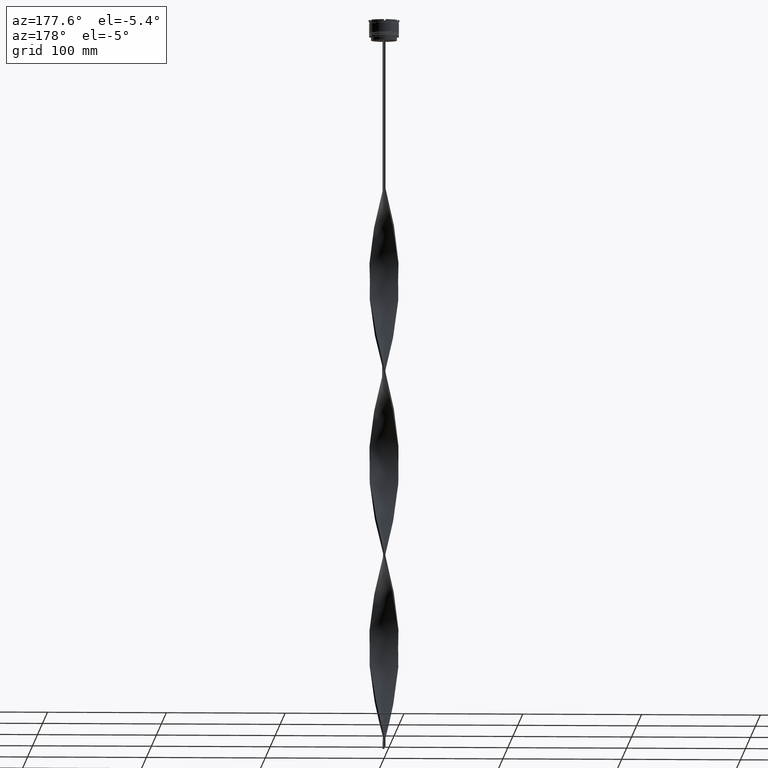
[diagram: clean part render]
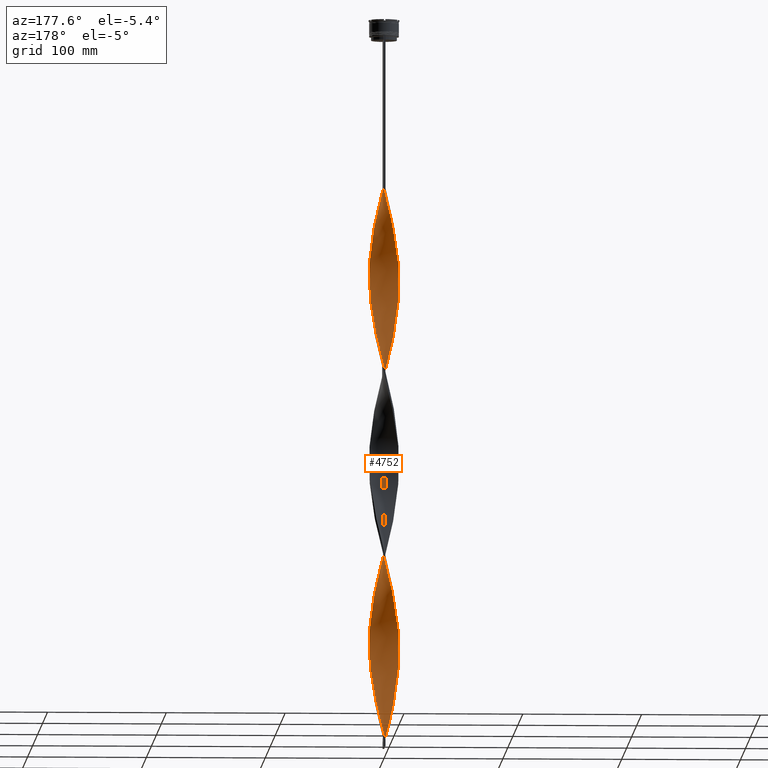
[diagram: same view with one face highlighted and labeled with its STEP entity id]
A machine part, auxiliary view. The second image highlights one B-rep face of the part: STEP entity #4752.
In plain terms, the highlighted face is a freeform B-spline surface patch.
Its self-contained STEP definition (entity closure, byte-faithful):
#1 = CARTESIAN_POINT ( 'NONE',  ( 1.608725446465269382, -12.44368138276816360, -307.6533333333334213 ) ) ;
#3 = CARTESIAN_POINT ( 'NONE',  ( -3.904224544142286035, 11.89829948811665083, -472.3066666666667288 ) ) ;
#13 = CARTESIAN_POINT ( 'NONE',  ( 0.7500000000000002220, -12.50000000000000000, -453.6666666666667425 ) ) ;
#16 = CARTESIAN_POINT ( 'NONE',  ( 10.15222897254093937, 7.331080881363972068, -248.6266666666666936 ) ) ;
#19 = CARTESIAN_POINT ( 'NONE',  ( -0.03643334067062180964, 12.54718600044023979, -456.7733333333334258 ) ) ;
#22 = CARTESIAN_POINT ( 'NONE',  ( 1.536433340670620984, 12.45281399955976553, -450.5600000000000023 ) ) ;
#40 = CARTESIAN_POINT ( 'NONE',  ( 12.31811391348432316, -2.386896213156298963, -518.9066666666666379 ) ) ;
#44 = CARTESIAN_POINT ( 'NONE',  ( 5.298889272974663278, -11.34611265908963418, -161.6400000000000148 ) ) ;
#46 = CARTESIAN_POINT ( 'NONE',  ( -11.33752076354115701, -5.375297838653134264, -556.1866666666668380 ) ) ;
#67 = CARTESIAN_POINT ( 'NONE',  ( -6.740552907874695521, -10.55355136890620216, -422.6000000000000227 ) ) ;
#70 = CARTESIAN_POINT ( 'NONE',  ( -12.11996919947063134, -3.149420042465479241, -546.8666666666666742 ) ) ;
#72 = CARTESIAN_POINT ( 'NONE',  ( 11.65644370790820794, -4.576004816908210593, -360.4666666666666970 ) ) ;
#86 = CARTESIAN_POINT ( 'NONE',  ( 11.92182448545694129, -3.911943871774654191, -512.6933333333334986 ) ) ;
#89 = CARTESIAN_POINT ( 'NONE',  ( -1.536433340670619652, -12.45281399955976553, -605.8933333333335440 ) ) ;
#100 = CARTESIAN_POINT ( 'NONE',  ( -12.31811391348432316, -2.386896213156299851, -233.0933333333333906 ) ) ;
#109 = CARTESIAN_POINT ( 'NONE',  ( -3.155646990963147491, -12.14393247619489991, -438.1333333333334394 ) ) ;
#113 = CARTESIAN_POINT ( 'NONE',  ( -12.52013932661148488, -0.8242057753937852560, -537.5466666666667379 ) ) ;
#125 = CARTESIAN_POINT ( 'NONE',  ( -12.11996919947063134, -3.149420042465479241, -236.2000000000000171 ) ) ;
#138 = CARTESIAN_POINT ( 'NONE',  ( 12.13805464816931412, 3.078981870368077356, -540.6533333333334213 ) ) ;
#141 = CARTESIAN_POINT ( 'NONE',  ( 6.679150936304339758, -10.59251824497200900, -167.8533333333333530 ) ) ;
#152 = CARTESIAN_POINT ( 'NONE',  ( -12.52471466338928074, 0.7514828798033548196, -220.6666666666666856 ) ) ;
#165 = CARTESIAN_POINT ( 'NONE',  ( -7.345575697064969489, 10.17230168627751929, -326.2933333333333508 ) ) ;
#175 = LINE ( 'NONE', #2805, #4119 ) ;
#176 = CARTESIAN_POINT ( 'NONE',  ( -9.690996458280338288, 7.969804989054246391, -189.6000000000000227 ) ) ;
#191 = CARTESIAN_POINT ( 'NONE',  ( -11.65644370790820972, -4.576004816908206152, -391.5333333333334167 ) ) ;
#208 = CARTESIAN_POINT ( 'NONE',  ( -8.010112353542551134, 9.625518172214162504, -180.2800000000000296 ) ) ;
#223 = CARTESIAN_POINT ( 'NONE',  ( -8.562581101809289663, 9.171445294657457836, -332.5066666666668311 ) ) ;
#231 = CARTESIAN_POINT ( 'NONE',  ( -6.076579735155670292, 10.97763101221075743, -170.9600000000000364 ) ) ;
#248 = CARTESIAN_POINT ( 'NONE',  ( 7.404526080593734960, 10.12947172560163978, -264.1600000000000819 ) ) ;
#255 = CARTESIAN_POINT ( 'NONE',  ( 10.15222897254094470, -7.331080881363965851, -348.0400000000000205 ) ) ;
#273 = CARTESIAN_POINT ( 'NONE',  ( 10.15222897254093937, 7.331080881363972068, -248.6266666666666936 ) ) ;
#280 = CARTESIAN_POINT ( 'NONE',  ( -8.615698626491365530, 9.121564618826681681, -183.3866666666666845 ) ) ;
#298 = CARTESIAN_POINT ( 'NONE',  ( 12.41912662004790313, -1.605550994275039667, -522.0133333333334349 ) ) ;
#307 = CARTESIAN_POINT ( 'NONE',  ( -1.608725446465267606, 12.44368138276816538, -462.9866666666666788 ) ) ;
#309 = CARTESIAN_POINT ( 'NONE',  ( 0.03643334067062148351, -12.54718600044023979, -301.4400000000000546 ) ) ;
#325 = CARTESIAN_POINT ( 'NONE',  ( 9.690996458280338288, 7.969804989054246391, -562.4000000000000909 ) ) ;
#328 = CARTESIAN_POINT ( 'NONE',  ( 3.155646990963151932, 12.14393247619489813, -282.8000000000000682 ) ) ;
#332 = CARTESIAN_POINT ( 'NONE',  ( 11.92182448545693774, 3.911943871774660408, -394.6399999999999864 ) ) ;
#334 = CARTESIAN_POINT ( 'NONE',  ( -3.835060960407159047, -11.92077209873424870, -285.9066666666666947 ) ) ;
#346 = CARTESIAN_POINT ( 'NONE',  ( 12.52013932661148665, -0.8242057753937837017, -525.1200000000001182 ) ) ;
#348 = CARTESIAN_POINT ( 'NONE',  ( 11.94434152831508911, 3.842643539664265084, -233.0933333333333906 ) ) ;
#351 = CARTESIAN_POINT ( 'NONE',  ( 12.41912662004790313, 1.605550994275047660, -385.3199999999999932 ) ) ;
#353 = CARTESIAN_POINT ( 'NONE',  ( -11.36854588750133388, 5.309366094152151661, -512.6933333333334986 ) ) ;
#370 = CARTESIAN_POINT ( 'NONE',  ( 7.345575697064968601, -10.17230168627752107, -481.6266666666667788 ) ) ;
#374 = CARTESIAN_POINT ( 'NONE',  ( -7.345575697064969489, 10.17230168627751929, -326.2933333333333508 ) ) ;
#377 = CARTESIAN_POINT ( 'NONE',  ( 12.13805464816931767, -3.078981870368074691, -366.6800000000000068 ) ) ;
#380 = CARTESIAN_POINT ( 'NONE',  ( 12.52471466338928074, -0.7514828798033591495, -376.0000000000000568 ) ) ;
#393 = CARTESIAN_POINT ( 'NONE',  ( -2.382186218714207548, -12.29380692948152998, -441.2400000000000091 ) ) ;
#397 = CARTESIAN_POINT ( 'NONE',  ( 10.57441756647771847, -6.753880147568761316, -189.6000000000000227 ) ) ;
#400 = CARTESIAN_POINT ( 'NONE',  ( 9.103565294674663022, 8.598697513321132746, -416.3866666666666561 ) ) ;
#403 = CARTESIAN_POINT ( 'NONE',  ( 10.10948352700888186, 7.389914939776782710, -410.1733333333334031 ) ) ;
#420 = CARTESIAN_POINT ( 'NONE',  ( 4.585052370405615640, -11.67949051451277143, -469.2000000000001023 ) ) ;
#423 = CARTESIAN_POINT ( 'NONE',  ( 7.954078399437126023, -9.671873490467488566, -174.0666666666666629 ) ) ;
#425 = CARTESIAN_POINT ( 'NONE',  ( -12.11996919947063134, -3.149420042465479241, -546.8666666666666742 ) ) ;
#442 = CARTESIAN_POINT ( 'NONE',  ( 10.15222897254093937, 7.331080881363972068, -559.2933333333334076 ) ) ;
#445 = CARTESIAN_POINT ( 'NONE',  ( -9.644549487540050592, -8.025949731984796998, -568.6133333333333439 ) ) ;
#447 = CARTESIAN_POINT ( 'NONE',  ( -8.010112353542551134, 9.625518172214162504, -490.9466666666667152 ) ) ;
#469 = CARTESIAN_POINT ( 'NONE',  ( -9.153347542385844804, -8.545684803940465812, -410.1733333333334031 ) ) ;
#472 = CARTESIAN_POINT ( 'NONE',  ( 12.52471466338928074, 0.7514828798033589274, -220.6666666666666856 ) ) ;
#489 = CARTESIAN_POINT ( 'NONE',  ( -0.8225793935679387436, -12.49543369160420170, -447.4533333333333758 ) ) ;
#493 = CARTESIAN_POINT ( 'NONE',  ( -9.690996458280338288, 7.969804989054246391, -500.2666666666666515 ) ) ;
#502 = CARTESIAN_POINT ( 'NONE',  ( -4.585052370405612976, -11.67949051451277143, -282.8000000000000682 ) ) ;
#512 = CARTESIAN_POINT ( 'NONE',  ( 5.298889272974663278, -11.34611265908963418, -472.3066666666667288 ) ) ;
#516 = CARTESIAN_POINT ( 'NONE',  ( 12.52013932661148665, -0.8242057753937837017, -214.4533333333333758 ) ) ;
#528 = CARTESIAN_POINT ( 'NONE',  ( -3.085069550408701122, -12.16205368295573130, -289.0133333333333212 ) ) ;
#543 = CARTESIAN_POINT ( 'NONE',  ( -12.52242699500038015, 0.03636144779521122833, -372.8933333333333735 ) ) ;
#544 = CARTESIAN_POINT ( 'NONE',  ( -8.562581101809280781, -9.171445294657461389, -574.8266666666667106 ) ) ;
#566 = CARTESIAN_POINT ( 'NONE',  ( 10.61346148680155110, 6.692356773673695081, -245.5200000000000387 ) ) ;
#580 = CARTESIAN_POINT ( 'NONE',  ( -0.03643334067062180964, 12.54718600044023979, -146.1066666666667118 ) ) ;
#593 = CARTESIAN_POINT ( 'NONE',  ( -6.740552907874695521, -10.55355136890620216, -422.6000000000000227 ) ) ;
#601 = CARTESIAN_POINT ( 'NONE',  ( 7.404526080593741177, -10.12947172560163622, -332.5066666666667743 ) ) ;
#624 = CARTESIAN_POINT ( 'NONE',  ( -4.585052370405619193, 11.67949051451277143, -313.8666666666666742 ) ) ;
#632 = CARTESIAN_POINT ( 'NONE',  ( -4.585052370405612088, -11.67949051451277143, -282.8000000000000682 ) ) ;
#650 = CARTESIAN_POINT ( 'NONE',  ( -12.41912662004790313, 1.605550994275040999, -366.6800000000000068 ) ) ;
#656 = CARTESIAN_POINT ( 'NONE',  ( -9.644549487540050592, -8.025949731984796998, -257.9466666666666583 ) ) ;
#659 = CARTESIAN_POINT ( 'NONE',  ( -0.7500000000000015543, 4.166666666666667851, -609.0000000000000000 ) ) ;
#670 = CARTESIAN_POINT ( 'NONE',  ( 10.99100368715144072, 6.000861433912924703, -553.0800000000000409 ) ) ;
#677 = CARTESIAN_POINT ( 'NONE',  ( -7.404526080593738513, 10.12947172560163800, -177.1733333333333462 ) ) ;
#678 = CARTESIAN_POINT ( 'NONE',  ( -1.536433340670619652, -12.45281399955976553, -295.2266666666667447 ) ) ;
#696 = CARTESIAN_POINT ( 'NONE',  ( 12.11996919947063134, -3.149420042465478353, -515.8000000000000682 ) ) ;
#700 = CARTESIAN_POINT ( 'NONE',  ( -1.536433340670622094, 12.45281399955976553, -301.4400000000000546 ) ) ;
#705 = CARTESIAN_POINT ( 'NONE',  ( 3.835060960407154607, 11.92077209873424870, -441.2400000000000091 ) ) ;
#707 = CARTESIAN_POINT ( 'NONE',  ( -9.153347542385848357, 8.545684803940464036, -186.4933333333333394 ) ) ;
#719 = CARTESIAN_POINT ( 'NONE',  ( 11.33752076354116056, -5.375297838653129823, -506.4800000000001887 ) ) ;
#722 = CARTESIAN_POINT ( 'NONE',  ( -11.92182448545694129, 3.911943871774654191, -357.3600000000000705 ) ) ;
#725 = CARTESIAN_POINT ( 'NONE',  ( 7.404526080593742066, -10.12947172560163622, -332.5066666666668311 ) ) ;
#727 = CARTESIAN_POINT ( 'NONE',  ( -10.99100368715144072, 6.000861433912922926, -509.5866666666666447 ) ) ;
#738 = CARTESIAN_POINT ( 'NONE',  ( 6.740552907874705291, 10.55355136890619860, -577.9333333333333940 ) ) ;
#740 = CARTESIAN_POINT ( 'NONE',  ( 9.690996458280338288, 7.969804989054245503, -251.7333333333334338 ) ) ;
#743 = CARTESIAN_POINT ( 'NONE',  ( 12.11996919947063311, 3.149420042465475245, -391.5333333333334167 ) ) ;
#745 = CARTESIAN_POINT ( 'NONE',  ( -12.33176776802354624, 2.315320201071886075, -525.1200000000001182 ) ) ;
#758 = CARTESIAN_POINT ( 'NONE',  ( 12.33176776802354624, 2.315320201071887851, -537.5466666666667379 ) ) ;
#762 = CARTESIAN_POINT ( 'NONE',  ( -8.562581101809287887, 9.171445294657457836, -332.5066666666667743 ) ) ;
#766 = CARTESIAN_POINT ( 'NONE',  ( 6.012726175543707363, 11.01273480366650048, -431.9200000000000728 ) ) ;
#769 = CARTESIAN_POINT ( 'NONE',  ( -12.31811391348432316, -2.386896213156300295, -543.7599999999999909 ) ) ;
#785 = CARTESIAN_POINT ( 'NONE',  ( 12.13805464816931412, 3.078981870368077356, -229.9866666666666788 ) ) ;
#788 = CARTESIAN_POINT ( 'NONE',  ( 8.562581101809286110, -9.171445294657459613, -177.1733333333333462 ) ) ;
#790 = CARTESIAN_POINT ( 'NONE',  ( -12.13805464816931767, 3.078981870368073359, -522.0133333333334349 ) ) ;
#805 = CARTESIAN_POINT ( 'NONE',  ( -11.65644370790820972, -4.576004816908206152, -391.5333333333334167 ) ) ;
#809 = CARTESIAN_POINT ( 'NONE',  ( -4.585052370405612976, -11.67949051451277143, -593.4666666666666970 ) ) ;
#812 = CARTESIAN_POINT ( 'NONE',  ( 11.33752076354115523, 5.375297838653137816, -400.8533333333334099 ) ) ;
#828 = VERTEX_POINT ( 'NONE', #4734 ) ;
#831 = CARTESIAN_POINT ( 'NONE',  ( -10.99100368715144072, -6.000861433912922926, -397.7466666666666697 ) ) ;
#835 = CARTESIAN_POINT ( 'NONE',  ( 3.835060960407158603, -11.92077209873424870, -155.4266666666666765 ) ) ;
#857 = CARTESIAN_POINT ( 'NONE',  ( -3.904224544142285147, -11.89829948811665261, -435.0266666666667561 ) ) ;
#860 = CARTESIAN_POINT ( 'NONE',  ( 4.585052370405616529, -11.67949051451277143, -158.5333333333333883 ) ) ;
#871 = CARTESIAN_POINT ( 'NONE',  ( -4.652802097321417030, 11.65266650003840709, -164.7466666666667265 ) ) ;
#880 = CARTESIAN_POINT ( 'NONE',  ( -2.382186218714207548, -12.29380692948152998, -441.2400000000000091 ) ) ;
#883 = CARTESIAN_POINT ( 'NONE',  ( -10.99100368715144072, 6.000861433912922926, -509.5866666666666447 ) ) ;
#892 = CARTESIAN_POINT ( 'NONE',  ( -12.13805464816931767, 3.078981870368073359, -211.3466666666666924 ) ) ;
#902 = CARTESIAN_POINT ( 'NONE',  ( 1.536433340670622316, -12.45281399955976553, -456.7733333333334258 ) ) ;
#906 = CARTESIAN_POINT ( 'NONE',  ( -12.33176776802354802, -2.315320201071886075, -382.2133333333333667 ) ) ;
#908 = CARTESIAN_POINT ( 'NONE',  ( -3.085069550408701122, -12.16205368295573130, -599.6799999999999500 ) ) ;
#922 = CARTESIAN_POINT ( 'NONE',  ( -3.904224544142286035, 11.89829948811665083, -161.6400000000000148 ) ) ;
#937 = CARTESIAN_POINT ( 'NONE',  ( -3.835060960407161712, 11.92077209873424870, -310.7600000000000477 ) ) ;
#939 = CARTESIAN_POINT ( 'NONE',  ( 5.298889272974663278, -11.34611265908963418, -161.6400000000000148 ) ) ;
#958 = CARTESIAN_POINT ( 'NONE',  ( -12.11996919947063134, 3.149420042465479241, -360.4666666666666970 ) ) ;
#965 = CARTESIAN_POINT ( 'NONE',  ( 6.740552907874707067, -10.55355136890619683, -329.4000000000000341 ) ) ;
#982 = CARTESIAN_POINT ( 'NONE',  ( 5.364690916238542329, 11.31514875612458226, -273.4800000000000750 ) ) ;
#991 = CARTESIAN_POINT ( 'NONE',  ( 9.690996458280336512, -7.969804989054249056, -344.9333333333334508 ) ) ;
#1011 = CARTESIAN_POINT ( 'NONE',  ( 3.904224544142283371, 11.89829948811665261, -590.3600000000000136 ) ) ;
#1014 = CARTESIAN_POINT ( 'NONE',  ( -10.10948352700888542, 7.389914939776777381, -341.8266666666667106 ) ) ;
#1020 = CARTESIAN_POINT ( 'NONE',  ( 11.36854588750133388, -5.309366094152151661, -357.3600000000000705 ) ) ;
#1031 = CARTESIAN_POINT ( 'NONE',  ( 2.382186218714211989, 12.29380692948152820, -596.5733333333333803 ) ) ;
#1034 = CARTESIAN_POINT ( 'NONE',  ( 8.615698626491363754, 9.121564618826683457, -568.6133333333333439 ) ) ;
#1041 = CARTESIAN_POINT ( 'NONE',  ( -12.52013932661148488, -0.8242057753937852560, -226.8800000000000523 ) ) ;
#1042 = CARTESIAN_POINT ( 'NONE',  ( 0.8225793935679449609, -12.49543369160420347, -304.5466666666666811 ) ) ;
#1049 =( BOUNDED_SURFACE ( )  B_SPLINE_SURFACE ( 1, 2, ( 
 ( #4673, #580, #3549, #2073, #3122, #3145, #922, #871, #2902, #4619, #3201, #677, #208, #2750, #1253, #176, #4255, #3466, #4702, #1336, #2442, #1311, #892, #1625, #3888, #152, #4404, #1041, #2534, #100, #125, #1596, #3093, #4595, #1232, #2418, #3489, #3940, #2021, #2725, #1277, #4281, #3860, #4229, #2363, #502, #1990, #528, #3521, #4643, #2773, #2558, #1089, #1, #3735, #2924, #2623, #1496, #3314, #2603, #1149, #725, #1869, #3687, #3015, #3335, #3757, #1105, #3708, #4106, #4840, #3360, #377, #2993, #4516, #4479, #4497, #1515, #351, #1126, #743, #332, #2236, #4126, #3663, #4149, #2647, #2169, #400, #2948, #4456, #1822, #1801, #766, #1476, #2262, #705, #3291, #1889, #2583, #3381, #19, #4428, #307, #1844, #2214, #4793, #4817, #1427, #2972, #1063, #4063, #2193, #1449, #4083, #493, #1957, #1542, #883, #1587, #4244, #4581, #1195, #4192, #4168, #1223, #1610, #113, #3133, #1906, #70, #1568, #1979, #3081, #4559, #1265, #4631, #445, #3802, #1242, #3039, #2377, #1173, #3402, #1934, #809, #3111, #3454, #4539, #89, #3432 ),
 ( #2713, #2008, #2761, #4219, #835, #860, #44, #2352, #141, #3059, #423, #788, #2668, #2303, #3851, #3505, #2687, #2328, #3477, #4608, #2741, #3873, #2282, #516, #3829, #472, #1640, #3779, #4324, #3238, #1742, #1324, #3929, #566, #273, #4690, #4714, #3984, #4736, #248, #4345, #2404, #982, #1369, #2866, #1397, #3535, #3589, #3157, #2136, #1297, #4372, #2507, #2818, #937, #624, #1762, #2433, #3562, #165, #2061, #223, #2476, #4299, #1014, #2114, #4762, #3613, #1349, #4011, #958, #1691, #650, #3633, #543, #3260, #4268, #906, #2839, #3902, #191, #2452, #1717, #1663, #2034, #3187, #4658, #2789, #2087, #3953, #593, #3214, #2255, #1794, #3373, #1099, #393, #1861, #4834, #1081, #13, #3329, #1469, #2965, #2615, #4118, #2185, #1489, #3752, #370, #2895, #4491, #3284, #4032, #4056, #1419, #2230, #719, #3655, #2208, #696, #2577, #298, #346, #4473, #3353, #3703, #758, #4398, #2597, #2939, #1836, #670, #4099, #1882, #325, #2528, #1034, #2161, #4786, #738, #2917, #4421, #1056, #3723, #4859, #2986, #1119, #2550, #3681, #3306 ) ),
 .UNSPECIFIED., .F., .F., .F. ) 
 B_SPLINE_SURFACE_WITH_KNOTS ( ( 2, 2 ),
 ( 3, 2, 2, 2, 2, 2, 2, 2, 2, 2, 2, 2, 2, 2, 2, 2, 2, 2, 2, 2, 2, 2, 2, 2, 2, 2, 2, 2, 2, 2, 2, 2, 2, 2, 2, 2, 2, 2, 2, 2, 2, 2, 2, 2, 2, 2, 2, 2, 2, 2, 2, 2, 2, 2, 2, 2, 2, 2, 2, 2, 2, 2, 2, 2, 2, 2, 2, 2, 2, 2, 2, 2, 2, 2, 2, 3 ),
 ( 0.000000000000000000, 1.000000000000000000 ),
 ( 0.000000000000000000, 0.01000000000000000021, 0.02000000000000000042, 0.02999999999999999889, 0.04000000000000000083, 0.05000000000000000278, 0.05999999999999999778, 0.07000000000000000666, 0.08000000000000000167, 0.08999999999999999667, 0.1000000000000000056, 0.1100000000000000006, 0.1199999999999999956, 0.1300000000000000044, 0.1400000000000000133, 0.1499999999999999944, 0.1600000000000000033, 0.1700000000000000122, 0.1799999999999999933, 0.1900000000000000022, 0.2000000000000000111, 0.2099999999999999922, 0.2200000000000000011, 0.2300000000000000100, 0.2399999999999999911, 0.2500000000000000000, 0.2600000000000000089, 0.2700000000000000178, 0.2800000000000000266, 0.2899999999999999800, 0.2999999999999999889, 0.3099999999999999978, 0.3200000000000000067, 0.3300000000000000155, 0.3400000000000000244, 0.3499999999999999778, 0.3599999999999999867, 0.3699999999999999956, 0.3800000000000000044, 0.3900000000000000133, 0.4000000000000000222, 0.4099999999999999756, 0.4199999999999999845, 0.4299999999999999933, 0.4400000000000000022, 0.4500000000000000111, 0.4600000000000000200, 0.4699999999999999734, 0.4799999999999999822, 0.4899999999999999911, 0.5000000000000000000, 0.5100000000000000089, 0.5200000000000000178, 0.5300000000000000266, 0.5400000000000000355, 0.5500000000000000444, 0.5600000000000000533, 0.5699999999999999512, 0.5799999999999999600, 0.5899999999999999689, 0.5999999999999999778, 0.6099999999999999867, 0.6199999999999999956, 0.6300000000000000044, 0.6400000000000000133, 0.6500000000000000222, 0.6600000000000000311, 0.6700000000000000400, 0.6800000000000000488, 0.6899999999999999467, 0.6999999999999999556, 0.7099999999999999645, 0.7199999999999999734, 0.7299999999999999822, 0.7399999999999999911, 0.7500000000000000000 ),
 .UNSPECIFIED. ) 
 GEOMETRIC_REPRESENTATION_ITEM ( )  RATIONAL_B_SPLINE_SURFACE ( (
 ( 1.000000000000000000, 0.9980267284282715590, 1.000000000000000000, 0.9980267284282715590, 1.000000000000000000, 0.9980267284282715590, 1.000000000000000000, 0.9980267284282715590, 1.000000000000000000, 0.9980267284282715590, 1.000000000000000000, 0.9980267284282715590, 1.000000000000000000, 0.9980267284282715590, 1.000000000000000000, 0.9980267284282715590, 1.000000000000000000, 0.9980267284282715590, 1.000000000000000000, 0.9980267284282715590, 1.000000000000000000, 0.9980267284282715590, 1.000000000000000000, 0.9980267284282715590, 1.000000000000000000, 0.9980267284282715590, 1.000000000000000000, 0.9980267284282715590, 1.000000000000000000, 0.9980267284282715590, 1.000000000000000000, 0.9980267284282715590, 1.000000000000000000, 0.9980267284282715590, 1.000000000000000000, 0.9980267284282715590, 1.000000000000000000, 0.9980267284282715590, 1.000000000000000000, 0.9980267284282715590, 1.000000000000000000, 0.9980267284282715590, 1.000000000000000000, 0.9980267284282715590, 1.000000000000000000, 0.9980267284282715590, 1.000000000000000000, 0.9980267284282715590, 1.000000000000000000, 0.9980267284282715590, 1.000000000000000000, 0.9980267284282715590, 1.000000000000000000, 0.9980267284282715590, 1.000000000000000000, 0.9980267284282715590, 1.000000000000000000, 0.9980267284282715590, 1.000000000000000000, 0.9980267284282715590, 1.000000000000000000, 0.9980267284282715590, 1.000000000000000000, 0.9980267284282715590, 1.000000000000000000, 0.9980267284282715590, 1.000000000000000000, 0.9980267284282715590, 1.000000000000000000, 0.9980267284282715590, 1.000000000000000000, 0.9980267284282715590, 1.000000000000000000, 0.9980267284282715590, 1.000000000000000000, 0.9980267284282715590, 1.000000000000000000, 0.9980267284282715590, 1.000000000000000000, 0.9980267284282715590, 1.000000000000000000, 0.9980267284282715590, 1.000000000000000000, 0.9980267284282715590, 1.000000000000000000, 0.9980267284282715590, 1.000000000000000000, 0.9980267284282715590, 1.000000000000000000, 0.9980267284282715590, 1.000000000000000000, 0.9980267284282715590, 1.000000000000000000, 0.9980267284282715590, 1.000000000000000000, 0.9980267284282715590, 1.000000000000000000, 0.9980267284282715590, 1.000000000000000000, 0.9980267284282715590, 1.000000000000000000, 0.9980267284282715590, 1.000000000000000000, 0.9980267284282715590, 1.000000000000000000, 0.9980267284282715590, 1.000000000000000000, 0.9980267284282715590, 1.000000000000000000, 0.9980267284282715590, 1.000000000000000000, 0.9980267284282715590, 1.000000000000000000, 0.9980267284282715590, 1.000000000000000000, 0.9980267284282715590, 1.000000000000000000, 0.9980267284282715590, 1.000000000000000000, 0.9980267284282715590, 1.000000000000000000, 0.9980267284282715590, 1.000000000000000000, 0.9980267284282715590, 1.000000000000000000, 0.9980267284282715590, 1.000000000000000000, 0.9980267284282715590, 1.000000000000000000, 0.9980267284282715590, 1.000000000000000000, 0.9980267284282715590, 1.000000000000000000, 0.9980267284282715590, 1.000000000000000000, 0.9980267284282715590, 1.000000000000000000, 0.9980267284282715590, 1.000000000000000000, 0.9980267284282715590, 1.000000000000000000, 0.9980267284282715590, 1.000000000000000000, 0.9980267284282715590, 1.000000000000000000, 0.9980267284282715590, 1.000000000000000000, 0.9980267284282715590, 1.000000000000000000, 0.9980267284282715590, 1.000000000000000000),
 ( 1.000000000000000000, 0.9980267284282715590, 1.000000000000000000, 0.9980267284282715590, 1.000000000000000000, 0.9980267284282715590, 1.000000000000000000, 0.9980267284282715590, 1.000000000000000000, 0.9980267284282715590, 1.000000000000000000, 0.9980267284282715590, 1.000000000000000000, 0.9980267284282715590, 1.000000000000000000, 0.9980267284282715590, 1.000000000000000000, 0.9980267284282715590, 1.000000000000000000, 0.9980267284282715590, 1.000000000000000000, 0.9980267284282715590, 1.000000000000000000, 0.9980267284282715590, 1.000000000000000000, 0.9980267284282715590, 1.000000000000000000, 0.9980267284282715590, 1.000000000000000000, 0.9980267284282715590, 1.000000000000000000, 0.9980267284282715590, 1.000000000000000000, 0.9980267284282715590, 1.000000000000000000, 0.9980267284282715590, 1.000000000000000000, 0.9980267284282715590, 1.000000000000000000, 0.9980267284282715590, 1.000000000000000000, 0.9980267284282715590, 1.000000000000000000, 0.9980267284282715590, 1.000000000000000000, 0.9980267284282715590, 1.000000000000000000, 0.9980267284282715590, 1.000000000000000000, 0.9980267284282715590, 1.000000000000000000, 0.9980267284282715590, 1.000000000000000000, 0.9980267284282715590, 1.000000000000000000, 0.9980267284282715590, 1.000000000000000000, 0.9980267284282715590, 1.000000000000000000, 0.9980267284282715590, 1.000000000000000000, 0.9980267284282715590, 1.000000000000000000, 0.9980267284282715590, 1.000000000000000000, 0.9980267284282715590, 1.000000000000000000, 0.9980267284282715590, 1.000000000000000000, 0.9980267284282715590, 1.000000000000000000, 0.9980267284282715590, 1.000000000000000000, 0.9980267284282715590, 1.000000000000000000, 0.9980267284282715590, 1.000000000000000000, 0.9980267284282715590, 1.000000000000000000, 0.9980267284282715590, 1.000000000000000000, 0.9980267284282715590, 1.000000000000000000, 0.9980267284282715590, 1.000000000000000000, 0.9980267284282715590, 1.000000000000000000, 0.9980267284282715590, 1.000000000000000000, 0.9980267284282715590, 1.000000000000000000, 0.9980267284282715590, 1.000000000000000000, 0.9980267284282715590, 1.000000000000000000, 0.9980267284282715590, 1.000000000000000000, 0.9980267284282715590, 1.000000000000000000, 0.9980267284282715590, 1.000000000000000000, 0.9980267284282715590, 1.000000000000000000, 0.9980267284282715590, 1.000000000000000000, 0.9980267284282715590, 1.000000000000000000, 0.9980267284282715590, 1.000000000000000000, 0.9980267284282715590, 1.000000000000000000, 0.9980267284282715590, 1.000000000000000000, 0.9980267284282715590, 1.000000000000000000, 0.9980267284282715590, 1.000000000000000000, 0.9980267284282715590, 1.000000000000000000, 0.9980267284282715590, 1.000000000000000000, 0.9980267284282715590, 1.000000000000000000, 0.9980267284282715590, 1.000000000000000000, 0.9980267284282715590, 1.000000000000000000, 0.9980267284282715590, 1.000000000000000000, 0.9980267284282715590, 1.000000000000000000, 0.9980267284282715590, 1.000000000000000000, 0.9980267284282715590, 1.000000000000000000, 0.9980267284282715590, 1.000000000000000000, 0.9980267284282715590, 1.000000000000000000, 0.9980267284282715590, 1.000000000000000000, 0.9980267284282715590, 1.000000000000000000, 0.9980267284282715590, 1.000000000000000000, 0.9980267284282715590, 1.000000000000000000, 0.9980267284282715590, 1.000000000000000000, 0.9980267284282715590, 1.000000000000000000) ) ) 
 REPRESENTATION_ITEM ( '' )  SURFACE ( )  );
#1056 = CARTESIAN_POINT ( 'NONE',  ( 4.652802097321414365, 11.65266650003840887, -587.2533333333335577 ) ) ;
#1059 = CARTESIAN_POINT ( 'NONE',  ( -12.42824121570641083, -1.533401540437625332, -379.1066666666666833 ) ) ;
#1063 = CARTESIAN_POINT ( 'NONE',  ( -6.740552907874703514, 10.55355136890620038, -484.7333333333333485 ) ) ;
#1065 = CARTESIAN_POINT ( 'NONE',  ( -12.13805464816931767, 3.078981870368073359, -211.3466666666666924 ) ) ;
#1081 = CARTESIAN_POINT ( 'NONE',  ( -0.03643334067062039411, -12.54718600044023979, -450.5600000000000023 ) ) ;
#1084 = CARTESIAN_POINT ( 'NONE',  ( -3.085069550408703787, 12.16205368295572953, -307.6533333333333644 ) ) ;
#1089 = CARTESIAN_POINT ( 'NONE',  ( 0.8225793935679449609, -12.49543369160420347, -304.5466666666666811 ) ) ;
#1091 = CARTESIAN_POINT ( 'NONE',  ( 9.644549487540052368, 8.025949731984795221, -413.2800000000000864 ) ) ;
#1099 = CARTESIAN_POINT ( 'NONE',  ( -3.155646990963147935, -12.14393247619489813, -438.1333333333334394 ) ) ;
#1102 = CARTESIAN_POINT ( 'NONE',  ( -0.7500000000000042188, 12.50000000000000000, -298.3333333333333144 ) ) ;
#1105 = CARTESIAN_POINT ( 'NONE',  ( 10.61346148680155288, -6.692356773673693304, -351.1466666666667606 ) ) ;
#1109 = CARTESIAN_POINT ( 'NONE',  ( 6.012726175543706475, 11.01273480366650048, -431.9200000000000728 ) ) ;
#1119 = CARTESIAN_POINT ( 'NONE',  ( 1.608725446465266717, 12.44368138276816538, -599.6799999999999500 ) ) ;
#1123 = CARTESIAN_POINT ( 'NONE',  ( 12.52471466338928074, 0.7514828798033589274, -220.6666666666667140 ) ) ;
#1126 = CARTESIAN_POINT ( 'NONE',  ( 12.31811391348432316, 2.386896213156300739, -388.4266666666667334 ) ) ;
#1128 = CARTESIAN_POINT ( 'NONE',  ( -12.52471466338928074, 0.7514828798033548196, -531.3333333333335986 ) ) ;
#1146 = CARTESIAN_POINT ( 'NONE',  ( -10.57441756647771669, 6.753880147568764869, -344.9333333333334508 ) ) ;
#1149 = CARTESIAN_POINT ( 'NONE',  ( 6.740552907874707067, -10.55355136890619683, -329.4000000000000341 ) ) ;
#1152 = CARTESIAN_POINT ( 'NONE',  ( -10.61346148680155288, 6.692356773673692416, -506.4800000000001319 ) ) ;
#1170 = CARTESIAN_POINT ( 'NONE',  ( 11.62967262449904915, -4.643620855213893783, -509.5866666666666447 ) ) ;
#1173 = CARTESIAN_POINT ( 'NONE',  ( -6.679150936304338870, -10.59251824497200900, -584.1466666666666470 ) ) ;
#1176 = CARTESIAN_POINT ( 'NONE',  ( 12.33176776802354624, -2.315320201071879858, -369.7866666666666902 ) ) ;
#1192 = CARTESIAN_POINT ( 'NONE',  ( 6.679150936304339758, -10.59251824497200900, -478.5200000000000387 ) ) ;
#1195 = CARTESIAN_POINT ( 'NONE',  ( -12.13805464816931767, 3.078981870368073359, -522.0133333333334349 ) ) ;
#1202 = EDGE_CURVE ( 'NONE', #4261, #3498, #175, .T. ) ;
#1219 = CARTESIAN_POINT ( 'NONE',  ( 11.94434152831508911, 3.842643539664265084, -543.7599999999999909 ) ) ;
#1223 = CARTESIAN_POINT ( 'NONE',  ( -12.52471466338928074, 0.7514828798033548196, -531.3333333333334849 ) ) ;
#1232 = CARTESIAN_POINT ( 'NONE',  ( -10.95596916500943685, -6.064588993110949566, -248.6266666666666936 ) ) ;
#1239 = CARTESIAN_POINT ( 'NONE',  ( -1.608725446465268050, -12.44368138276816538, -444.3466666666668061 ) ) ;
#1242 = CARTESIAN_POINT ( 'NONE',  ( -8.562581101809282558, -9.171445294657461389, -574.8266666666665969 ) ) ;
#1253 = CARTESIAN_POINT ( 'NONE',  ( -9.153347542385848357, 8.545684803940464036, -186.4933333333333394 ) ) ;
#1261 = CARTESIAN_POINT ( 'NONE',  ( -5.364690916238543217, -11.31514875612458226, -428.8133333333333894 ) ) ;
#1265 = CARTESIAN_POINT ( 'NONE',  ( -10.57441756647771847, -6.753880147568761316, -562.4000000000000909 ) ) ;
#1266 = CARTESIAN_POINT ( 'NONE',  ( -7.345575697064968601, -10.17230168627752107, -581.0400000000000773 ) ) ;
#1277 = CARTESIAN_POINT ( 'NONE',  ( -7.954078399437126912, -9.671873490467486789, -267.2666666666667084 ) ) ;
#1281 =( BOUNDED_CURVE ( )  B_SPLINE_CURVE ( 2, ( #3088, #3514, #1699, #4697, #1331, #2825, #2143, #2120, #2514, #231, #1772, #4405, #1804, #280, #707, #1451, #2096, #3665, #4721, #4380, #2196, #3690, #1065, #1355, #2559, #2875, #2535, #3960, #3619, #1824, #3638, #3269, #4331, #3221, #2847, #4794, #4040, #656, #1726, #4429, #4772, #3292, #1428, #1379, #3993, #632, #334, #4743, #1404, #678, #2925, #309, #1042, #2458, #2170, #2485, #2903, #4065, #3316, #4819, #965, #601, #3598, #4017, #4352, #991, #255, #1748, #3244, #1020, #72, #3434, #2950, #1176, #3737, #380, #4481, #2585, #1545, #2974, #2605, #3337, #2996, #812, #2239, #4518, #403, #1091, #4128, #4108, #1846, #4170, #2216, #1109, #2264, #3383, #1891, #2670, #4459, #22, #3362, #3710, #3041, #3759, #4541, #1518, #3, #1498, #1478, #3017, #3781, #2284, #447, #4086, #1871, #4499, #2649, #1152, #727, #353, #4151, #4843, #790, #745, #2305, #1128, #1909, #3805, #2625, #769, #425, #1937, #3406, #46, #2331, #3082, #2378, #4632, #1588, #544, #1642, #1266, #2009, #2405, #1611, #3852, #3134, #908, #2689, #2762, #4270 ),
 .UNSPECIFIED., .F., .T. ) 
 B_SPLINE_CURVE_WITH_KNOTS ( ( 3, 2, 2, 2, 2, 2, 2, 2, 2, 2, 2, 2, 2, 2, 2, 2, 2, 2, 2, 2, 2, 2, 2, 2, 2, 2, 2, 2, 2, 2, 2, 2, 2, 2, 2, 2, 2, 2, 2, 2, 2, 2, 2, 2, 2, 2, 2, 2, 2, 2, 2, 2, 2, 2, 2, 2, 2, 2, 2, 2, 2, 2, 2, 2, 2, 2, 2, 2, 2, 2, 2, 2, 2, 2, 2, 3 ),
 ( 0.000000000000000000, 0.01000000000000000021, 0.02000000000000000042, 0.02999999999999999889, 0.04000000000000000083, 0.05000000000000000971, 0.05999999999999999778, 0.07000000000000000666, 0.08000000000000000167, 0.09000000000000001055, 0.1000000000000000194, 0.1100000000000000006, 0.1199999999999999956, 0.1300000000000000044, 0.1400000000000000133, 0.1499999999999999944, 0.1600000000000000033, 0.1700000000000000122, 0.1800000000000000211, 0.1900000000000000300, 0.2000000000000000389, 0.2099999999999999922, 0.2200000000000000011, 0.2300000000000000100, 0.2399999999999999911, 0.2500000000000000000, 0.2600000000000000089, 0.2700000000000000178, 0.2800000000000000266, 0.2899999999999999800, 0.2999999999999999889, 0.3099999999999999978, 0.3200000000000000067, 0.3300000000000000155, 0.3400000000000000244, 0.3499999999999999223, 0.3600000000000000422, 0.3699999999999999400, 0.3800000000000000600, 0.3899999999999999578, 0.4000000000000000777, 0.4099999999999999756, 0.4199999999999999845, 0.4299999999999999933, 0.4400000000000000022, 0.4500000000000000111, 0.4600000000000000200, 0.4699999999999999734, 0.4799999999999999822, 0.4899999999999999911, 0.5000000000000000000, 0.5100000000000000089, 0.5200000000000000178, 0.5300000000000000266, 0.5400000000000000355, 0.5500000000000000444, 0.5600000000000000533, 0.5699999999999999512, 0.5799999999999999600, 0.5899999999999999689, 0.5999999999999999778, 0.6099999999999999867, 0.6199999999999999956, 0.6300000000000000044, 0.6400000000000000133, 0.6500000000000000222, 0.6600000000000000311, 0.6700000000000000400, 0.6800000000000000488, 0.6899999999999999467, 0.6999999999999998446, 0.7099999999999999645, 0.7200000000000000844, 0.7299999999999999822, 0.7399999999999998801, 0.7500000000000000000 ),
 .UNSPECIFIED. ) 
 CURVE ( )  GEOMETRIC_REPRESENTATION_ITEM ( )  RATIONAL_B_SPLINE_CURVE ( ( 1.000000000000000000, 0.9980267284282715590, 1.000000000000000000, 0.9980267284282715590, 1.000000000000000000, 0.9980267284282715590, 1.000000000000000000, 0.9980267284282715590, 1.000000000000000000, 0.9980267284282715590, 1.000000000000000000, 0.9980267284282715590, 1.000000000000000000, 0.9980267284282715590, 1.000000000000000000, 0.9980267284282715590, 1.000000000000000000, 0.9980267284282715590, 1.000000000000000000, 0.9980267284282715590, 1.000000000000000000, 0.9980267284282715590, 1.000000000000000000, 0.9980267284282715590, 1.000000000000000000, 0.9980267284282715590, 1.000000000000000000, 0.9980267284282715590, 1.000000000000000000, 0.9980267284282715590, 1.000000000000000000, 0.9980267284282715590, 1.000000000000000000, 0.9980267284282715590, 1.000000000000000000, 0.9980267284282715590, 1.000000000000000000, 0.9980267284282715590, 1.000000000000000000, 0.9980267284282715590, 1.000000000000000000, 0.9980267284282715590, 1.000000000000000000, 0.9980267284282715590, 1.000000000000000000, 0.9980267284282715590, 1.000000000000000000, 0.9980267284282715590, 1.000000000000000000, 0.9980267284282715590, 1.000000000000000000, 0.9980267284282715590, 1.000000000000000000, 0.9980267284282715590, 1.000000000000000000, 0.9980267284282715590, 1.000000000000000000, 0.9980267284282715590, 1.000000000000000000, 0.9980267284282715590, 1.000000000000000000, 0.9980267284282715590, 1.000000000000000000, 0.9980267284282715590, 1.000000000000000000, 0.9980267284282715590, 1.000000000000000000, 0.9980267284282715590, 1.000000000000000000, 0.9980267284282715590, 1.000000000000000000, 0.9980267284282715590, 1.000000000000000000, 0.9980267284282715590, 1.000000000000000000, 0.9980267284282715590, 1.000000000000000000, 0.9980267284282715590, 1.000000000000000000, 0.9980267284282715590, 1.000000000000000000, 0.9980267284282715590, 1.000000000000000000, 0.9980267284282715590, 1.000000000000000000, 0.9980267284282715590, 1.000000000000000000, 0.9980267284282715590, 1.000000000000000000, 0.9980267284282715590, 1.000000000000000000, 0.9980267284282715590, 1.000000000000000000, 0.9980267284282715590, 1.000000000000000000, 0.9980267284282715590, 1.000000000000000000, 0.9980267284282715590, 1.000000000000000000, 0.9980267284282715590, 1.000000000000000000, 0.9980267284282715590, 1.000000000000000000, 0.9980267284282715590, 1.000000000000000000, 0.9980267284282715590, 1.000000000000000000, 0.9980267284282715590, 1.000000000000000000, 0.9980267284282715590, 1.000000000000000000, 0.9980267284282715590, 1.000000000000000000, 0.9980267284282715590, 1.000000000000000000, 0.9980267284282715590, 1.000000000000000000, 0.9980267284282715590, 1.000000000000000000, 0.9980267284282715590, 1.000000000000000000, 0.9980267284282715590, 1.000000000000000000, 0.9980267284282715590, 1.000000000000000000, 0.9980267284282715590, 1.000000000000000000, 0.9980267284282715590, 1.000000000000000000, 0.9980267284282715590, 1.000000000000000000, 0.9980267284282715590, 1.000000000000000000, 0.9980267284282715590, 1.000000000000000000, 0.9980267284282715590, 1.000000000000000000, 0.9980267284282715590, 1.000000000000000000, 0.9980267284282715590, 1.000000000000000000, 0.9980267284282715590, 1.000000000000000000, 0.9980267284282715590, 1.000000000000000000, 0.9980267284282715590, 1.000000000000000000, 0.9980267284282715590, 1.000000000000000000, 0.9980267284282715590, 1.000000000000000000 ) ) 
 REPRESENTATION_ITEM ( '' )  );
#1297 = CARTESIAN_POINT ( 'NONE',  ( -0.7500000000000042188, 12.50000000000000000, -298.3333333333333144 ) ) ;
#1300 = CARTESIAN_POINT ( 'NONE',  ( 1.536433340670622316, -12.45281399955976553, -146.1066666666667118 ) ) ;
#1311 = CARTESIAN_POINT ( 'NONE',  ( -11.94434152831508911, 3.842643539664264196, -208.2400000000000659 ) ) ;
#1324 = CARTESIAN_POINT ( 'NONE',  ( 11.36854588750133388, 5.309366094152153437, -239.3066666666667288 ) ) ;
#1331 = CARTESIAN_POINT ( 'NONE',  ( -2.382186218714211545, 12.29380692948152820, -155.4266666666666765 ) ) ;
#1336 = CARTESIAN_POINT ( 'NONE',  ( -11.36854588750133388, 5.309366094152151661, -202.0266666666667277 ) ) ;
#1339 = ORIENTED_EDGE ( 'NONE', *, *, #1535, .F. ) ;
#1349 = CARTESIAN_POINT ( 'NONE',  ( -11.62967262449905270, 4.643620855213886678, -354.2533333333333871 ) ) ;
#1355 = CARTESIAN_POINT ( 'NONE',  ( -12.33176776802354624, 2.315320201071886075, -214.4533333333333758 ) ) ;
#1369 = CARTESIAN_POINT ( 'NONE',  ( 4.652802097321414365, 11.65266650003840887, -276.5866666666667584 ) ) ;
#1379 = CARTESIAN_POINT ( 'NONE',  ( -6.012726175543710028, -11.01273480366650048, -276.5866666666667584 ) ) ;
#1397 = CARTESIAN_POINT ( 'NONE',  ( 3.155646990963152376, 12.14393247619489813, -282.8000000000000682 ) ) ;
#1404 = CARTESIAN_POINT ( 'NONE',  ( -2.310751445539660054, -12.30743384125774575, -292.1200000000000614 ) ) ;
#1419 = CARTESIAN_POINT ( 'NONE',  ( 10.57441756647771847, -6.753880147568761316, -500.2666666666666515 ) ) ;
#1422 = CARTESIAN_POINT ( 'NONE',  ( -12.52013932661148488, 0.8242057753937772624, -369.7866666666666902 ) ) ;
#1427 = CARTESIAN_POINT ( 'NONE',  ( -5.364690916238543217, 11.31514875612458226, -478.5200000000000387 ) ) ;
#1428 = CARTESIAN_POINT ( 'NONE',  ( -6.679150936304338870, -10.59251824497200900, -273.4800000000000750 ) ) ;
#1444 = CARTESIAN_POINT ( 'NONE',  ( 11.62967262449904915, -4.643620855213893783, -198.9200000000000159 ) ) ;
#1449 = CARTESIAN_POINT ( 'NONE',  ( -8.615698626491365530, 9.121564618826681681, -494.0533333333333985 ) ) ;
#1451 = CARTESIAN_POINT ( 'NONE',  ( -9.690996458280338288, 7.969804989054245503, -189.6000000000000227 ) ) ;
#1469 = CARTESIAN_POINT ( 'NONE',  ( 2.310751445539661830, -12.30743384125774575, -459.8799999999999955 ) ) ;
#1472 = CARTESIAN_POINT ( 'NONE',  ( -12.31811391348432494, 2.386896213156294966, -363.5733333333334372 ) ) ;
#1476 = CARTESIAN_POINT ( 'NONE',  ( 5.298889272974663278, 11.34611265908963595, -435.0266666666667561 ) ) ;
#1478 = CARTESIAN_POINT ( 'NONE',  ( -5.364690916238543217, 11.31514875612458226, -478.5200000000000387 ) ) ;
#1489 = CARTESIAN_POINT ( 'NONE',  ( 6.012726175543713580, -11.01273480366649871, -475.4133333333333553 ) ) ;
#1493 = CARTESIAN_POINT ( 'NONE',  ( 11.65644370790820794, 4.576004816908210593, -236.2000000000000171 ) ) ;
#1496 = CARTESIAN_POINT ( 'NONE',  ( 4.652802097321416142, -11.65266650003840709, -320.0800000000000978 ) ) ;
#1498 = CARTESIAN_POINT ( 'NONE',  ( -4.652802097321417030, 11.65266650003840709, -475.4133333333333553 ) ) ;
#1512 = CARTESIAN_POINT ( 'NONE',  ( 3.904224544142283371, 11.89829948811665261, -279.6933333333333280 ) ) ;
#1515 = CARTESIAN_POINT ( 'NONE',  ( 12.52013932661148665, 0.8242057753937834796, -382.2133333333333667 ) ) ;
#1518 = CARTESIAN_POINT ( 'NONE',  ( -3.155646990963155485, 12.14393247619489813, -469.2000000000001023 ) ) ;
#1535 = EDGE_CURVE ( 'NONE', #3695, #828, #3765, .T. ) ;
#1539 = CARTESIAN_POINT ( 'NONE',  ( -10.61346148680154755, -6.692356773673698633, -400.8533333333334099 ) ) ;
#1542 = CARTESIAN_POINT ( 'NONE',  ( -10.61346148680155466, 6.692356773673692416, -506.4800000000001887 ) ) ;
#1545 = CARTESIAN_POINT ( 'NONE',  ( 12.41912662004790313, 1.605550994275047660, -385.3199999999999932 ) ) ;
#1564 = CARTESIAN_POINT ( 'NONE',  ( -6.076579735155665851, -10.97763101221075743, -425.7066666666667061 ) ) ;
#1568 = CARTESIAN_POINT ( 'NONE',  ( -11.92182448545694129, -3.911943871774656412, -549.9733333333333576 ) ) ;
#1584 = CARTESIAN_POINT ( 'NONE',  ( 12.42824121570641083, 1.533401540437621557, -534.4400000000000546 ) ) ;
#1587 = CARTESIAN_POINT ( 'NONE',  ( -11.36854588750133388, 5.309366094152151661, -512.6933333333333849 ) ) ;
#1588 = CARTESIAN_POINT ( 'NONE',  ( -9.103565294674666575, -8.598697513321130970, -571.7200000000000273 ) ) ;
#1596 = CARTESIAN_POINT ( 'NONE',  ( -11.92182448545694129, -3.911943871774656412, -239.3066666666667288 ) ) ;
#1605 = CARTESIAN_POINT ( 'NONE',  ( 12.52471466338928074, 0.7514828798033589274, -531.3333333333335986 ) ) ;
#1610 = CARTESIAN_POINT ( 'NONE',  ( -12.52242699500038015, -0.03636144779521361531, -534.4400000000000546 ) ) ;
#1611 = CARTESIAN_POINT ( 'NONE',  ( -5.298889272974661502, -11.34611265908963595, -590.3600000000000136 ) ) ;
#1625 = CARTESIAN_POINT ( 'NONE',  ( -12.33176776802354802, 2.315320201071886519, -214.4533333333333758 ) ) ;
#1636 = CARTESIAN_POINT ( 'NONE',  ( 11.65644370790820794, 4.576004816908210593, -546.8666666666666742 ) ) ;
#1640 = CARTESIAN_POINT ( 'NONE',  ( 12.42824121570641083, 1.533401540437621557, -223.7733333333333405 ) ) ;
#1642 = CARTESIAN_POINT ( 'NONE',  ( -7.954078399437126912, -9.671873490467486789, -577.9333333333333940 ) ) ;
#1663 = CARTESIAN_POINT ( 'NONE',  ( -10.61346148680154933, -6.692356773673698633, -400.8533333333334099 ) ) ;
#1691 = CARTESIAN_POINT ( 'NONE',  ( -12.31811391348432494, 2.386896213156294966, -363.5733333333334372 ) ) ;
#1694 = CARTESIAN_POINT ( 'NONE',  ( 8.562581101809284334, -9.171445294657459613, -177.1733333333333462 ) ) ;
#1699 = CARTESIAN_POINT ( 'NONE',  ( -0.8225793935679445168, 12.49543369160420347, -149.2133333333333383 ) ) ;
#1704 = FACE_OUTER_BOUND ( 'NONE', #3698, .T. ) ;
#1717 = CARTESIAN_POINT ( 'NONE',  ( -10.99100368715144072, -6.000861433912922926, -397.7466666666666697 ) ) ;
#1726 = CARTESIAN_POINT ( 'NONE',  ( -9.103565294674666575, -8.598697513321130970, -261.0533333333333417 ) ) ;
#1742 = CARTESIAN_POINT ( 'NONE',  ( 11.65644370790820794, 4.576004816908210593, -236.2000000000000171 ) ) ;
#1748 = CARTESIAN_POINT ( 'NONE',  ( 10.61346148680155110, -6.692356773673693304, -351.1466666666667038 ) ) ;
#1759 = CARTESIAN_POINT ( 'NONE',  ( -0.7500000000000042188, 12.50000000000000000, -609.0000000000000000 ) ) ;
#1762 = CARTESIAN_POINT ( 'NONE',  ( -5.298889272974667719, 11.34611265908963240, -316.9733333333333576 ) ) ;
#1772 = CARTESIAN_POINT ( 'NONE',  ( -6.740552907874703514, 10.55355136890620038, -174.0666666666666629 ) ) ;
#1794 = CARTESIAN_POINT ( 'NONE',  ( -4.652802097321410812, -11.65266650003840887, -431.9200000000000728 ) ) ;
#1797 = CARTESIAN_POINT ( 'NONE',  ( -12.11996919947063134, 3.149420042465479241, -360.4666666666666970 ) ) ;
#1801 = CARTESIAN_POINT ( 'NONE',  ( 6.679150936304339758, 10.59251824497200900, -428.8133333333333894 ) ) ;
#1804 = CARTESIAN_POINT ( 'NONE',  ( -8.010112353542551134, 9.625518172214162504, -180.2800000000000296 ) ) ;
#1818 = CARTESIAN_POINT ( 'NONE',  ( 0.8225793935679426294, 12.49543369160420347, -292.1200000000000614 ) ) ;
#1822 = CARTESIAN_POINT ( 'NONE',  ( 7.345575697064964160, 10.17230168627752107, -425.7066666666667629 ) ) ;
#1824 = CARTESIAN_POINT ( 'NONE',  ( -12.31811391348432316, -2.386896213156300295, -233.0933333333333906 ) ) ;
#1836 = CARTESIAN_POINT ( 'NONE',  ( 11.36854588750133388, 5.309366094152153437, -549.9733333333333576 ) ) ;
#1839 = CARTESIAN_POINT ( 'NONE',  ( 11.92182448545694129, -3.911943871774654191, -202.0266666666667277 ) ) ;
#1844 = CARTESIAN_POINT ( 'NONE',  ( -2.382186218714211545, 12.29380692948152820, -466.0933333333333621 ) ) ;
#1846 = CARTESIAN_POINT ( 'NONE',  ( 7.954078399437118918, 9.671873490467493895, -422.6000000000000227 ) ) ;
#1850 = CARTESIAN_POINT ( 'NONE',  ( -0.7499999999999962252, -12.50000000000000000, -609.0000000000000000 ) ) ;
#1861 = CARTESIAN_POINT ( 'NONE',  ( -1.608725446465268050, -12.44368138276816538, -444.3466666666667493 ) ) ;
#1865 = CARTESIAN_POINT ( 'NONE',  ( -6.012726175543711804, 11.01273480366649871, -320.0800000000000978 ) ) ;
#1869 = CARTESIAN_POINT ( 'NONE',  ( 8.010112353542551134, -9.625518172214162504, -335.6133333333334008 ) ) ;
#1871 = CARTESIAN_POINT ( 'NONE',  ( -9.153347542385848357, 8.545684803940464036, -497.1600000000000250 ) ) ;
#1882 = CARTESIAN_POINT ( 'NONE',  ( 10.15222897254093937, 7.331080881363972068, -559.2933333333334076 ) ) ;
#1886 = CARTESIAN_POINT ( 'NONE',  ( -9.103565294674670128, 8.598697513321127417, -335.6133333333334008 ) ) ;
#1889 = CARTESIAN_POINT ( 'NONE',  ( 2.310751445539656057, 12.30743384125774753, -447.4533333333333758 ) ) ;
#1891 = CARTESIAN_POINT ( 'NONE',  ( 3.835060960407154607, 11.92077209873424870, -441.2400000000000091 ) ) ;
#1903 = CARTESIAN_POINT ( 'NONE',  ( 8.562581101809284334, -9.171445294657459613, -487.8400000000000887 ) ) ;
#1906 = CARTESIAN_POINT ( 'NONE',  ( -12.31811391348432316, -2.386896213156299851, -543.7599999999999909 ) ) ;
#1909 = CARTESIAN_POINT ( 'NONE',  ( -12.52242699500038015, -0.03636144779521361531, -534.4400000000000546 ) ) ;
#1931 = CARTESIAN_POINT ( 'NONE',  ( 6.076579735155670292, 10.97763101221075743, -581.0400000000000773 ) ) ;
#1934 = CARTESIAN_POINT ( 'NONE',  ( -5.298889272974661502, -11.34611265908963595, -590.3600000000000136 ) ) ;
#1937 = CARTESIAN_POINT ( 'NONE',  ( -11.92182448545694129, -3.911943871774655967, -549.9733333333334713 ) ) ;
#1947 = ORIENTED_EDGE ( 'NONE', *, *, #3526, .T. ) ;
#1954 = CARTESIAN_POINT ( 'NONE',  ( 10.95596916500943863, -6.064588993110946014, -503.3733333333334485 ) ) ;
#1957 = CARTESIAN_POINT ( 'NONE',  ( -10.15222897254094114, 7.331080881363969404, -503.3733333333334485 ) ) ;
#1976 = CARTESIAN_POINT ( 'NONE',  ( 0.7500000000000002220, -12.50000000000000000, -453.6666666666667425 ) ) ;
#1979 = CARTESIAN_POINT ( 'NONE',  ( -11.62967262449904915, -4.643620855213893783, -553.0800000000000409 ) ) ;
#1990 = CARTESIAN_POINT ( 'NONE',  ( -3.835060960407159047, -11.92077209873424870, -285.9066666666666947 ) ) ;
#2002 = CARTESIAN_POINT ( 'NONE',  ( 12.52242699500038015, -0.03636144779521242182, -528.2266666666666879 ) ) ;
#2008 = CARTESIAN_POINT ( 'NONE',  ( 1.536433340670622538, -12.45281399955976553, -146.1066666666667118 ) ) ;
#2009 = CARTESIAN_POINT ( 'NONE',  ( -6.679150936304338870, -10.59251824497200900, -584.1466666666666470 ) ) ;
#2021 = CARTESIAN_POINT ( 'NONE',  ( -9.103565294674666575, -8.598697513321130970, -261.0533333333333417 ) ) ;
#2030 = CARTESIAN_POINT ( 'NONE',  ( 5.364690916238542329, 11.31514875612458226, -584.1466666666666470 ) ) ;
#2034 = CARTESIAN_POINT ( 'NONE',  ( -10.15222897254093937, -7.331080881363972068, -403.9600000000000364 ) ) ;
#2061 = CARTESIAN_POINT ( 'NONE',  ( -7.954078399437128688, 9.671873490467485013, -329.4000000000000341 ) ) ;
#2064 = CARTESIAN_POINT ( 'NONE',  ( 6.679150936304339758, -10.59251824497200900, -167.8533333333333530 ) ) ;
#2073 = CARTESIAN_POINT ( 'NONE',  ( -1.608725446465267606, 12.44368138276816538, -152.3200000000000500 ) ) ;
#2087 = CARTESIAN_POINT ( 'NONE',  ( -8.010112353542544028, -9.625518172214164281, -416.3866666666666561 ) ) ;
#2096 = CARTESIAN_POINT ( 'NONE',  ( -10.15222897254094114, 7.331080881363969404, -192.7066666666667061 ) ) ;
#2114 = CARTESIAN_POINT ( 'NONE',  ( -10.57441756647771669, 6.753880147568764869, -344.9333333333334508 ) ) ;
#2120 = CARTESIAN_POINT ( 'NONE',  ( -4.652802097321417030, 11.65266650003840709, -164.7466666666666981 ) ) ;
#2136 = CARTESIAN_POINT ( 'NONE',  ( 0.03643334067061888837, 12.54718600044023979, -295.2266666666667447 ) ) ;
#2143 = CARTESIAN_POINT ( 'NONE',  ( -3.904224544142286035, 11.89829948811665083, -161.6400000000000148 ) ) ;
#2161 = CARTESIAN_POINT ( 'NONE',  ( 8.010112353542547581, 9.625518172214162504, -571.7200000000000273 ) ) ;
#2169 = CARTESIAN_POINT ( 'NONE',  ( 9.644549487540052368, 8.025949731984795221, -413.2800000000000864 ) ) ;
#2170 = CARTESIAN_POINT ( 'NONE',  ( 2.382186218714214210, -12.29380692948152820, -310.7600000000000477 ) ) ;
#2185 = CARTESIAN_POINT ( 'NONE',  ( 5.298889272974663278, -11.34611265908963418, -472.3066666666667288 ) ) ;
#2189 = CARTESIAN_POINT ( 'NONE',  ( 10.95596916500943863, -6.064588993110946014, -192.7066666666667061 ) ) ;
#2193 = CARTESIAN_POINT ( 'NONE',  ( -8.010112353542551134, 9.625518172214162504, -490.9466666666667152 ) ) ;
#2196 = CARTESIAN_POINT ( 'NONE',  ( -11.65644370790820794, 4.576004816908208817, -205.1333333333333542 ) ) ;
#2208 = CARTESIAN_POINT ( 'NONE',  ( 11.92182448545694129, -3.911943871774654635, -512.6933333333333849 ) ) ;
#2211 = CARTESIAN_POINT ( 'NONE',  ( -12.52242699500038015, 0.03636144779521122833, -372.8933333333333735 ) ) ;
#2214 = CARTESIAN_POINT ( 'NONE',  ( -3.155646990963155485, 12.14393247619489813, -469.2000000000001023 ) ) ;
#2216 = CARTESIAN_POINT ( 'NONE',  ( 6.679150936304339758, 10.59251824497200900, -428.8133333333333894 ) ) ;
#2230 = CARTESIAN_POINT ( 'NONE',  ( 10.95596916500943863, -6.064588993110946014, -503.3733333333334485 ) ) ;
#2233 = CARTESIAN_POINT ( 'NONE',  ( 12.33176776802354446, 2.315320201071887407, -226.8800000000000523 ) ) ;
#2236 = CARTESIAN_POINT ( 'NONE',  ( 11.62967262449904915, 4.643620855213893783, -397.7466666666666697 ) ) ;
#2239 = CARTESIAN_POINT ( 'NONE',  ( 10.95596916500943685, 6.064588993110948678, -403.9600000000000364 ) ) ;
#2255 = CARTESIAN_POINT ( 'NONE',  ( -5.364690916238543217, -11.31514875612458226, -428.8133333333333894 ) ) ;
#2258 = CARTESIAN_POINT ( 'NONE',  ( 12.52242699500038015, -0.03636144779521242182, -217.5600000000000307 ) ) ;
#2262 = CARTESIAN_POINT ( 'NONE',  ( 4.585052370405608535, 11.67949051451277320, -438.1333333333334394 ) ) ;
#2264 = CARTESIAN_POINT ( 'NONE',  ( 5.298889272974663278, 11.34611265908963595, -435.0266666666667561 ) ) ;
#2279 = CARTESIAN_POINT ( 'NONE',  ( 6.076579735155670292, 10.97763101221075743, -270.3733333333333348 ) ) ;
#2282 = CARTESIAN_POINT ( 'NONE',  ( 12.41912662004790313, -1.605550994275039667, -211.3466666666666924 ) ) ;
#2284 = CARTESIAN_POINT ( 'NONE',  ( -7.404526080593738513, 10.12947172560163800, -487.8400000000000887 ) ) ;
#2300 = CARTESIAN_POINT ( 'NONE',  ( 12.41912662004790313, -1.605550994275039667, -522.0133333333334349 ) ) ;
#2303 = CARTESIAN_POINT ( 'NONE',  ( 9.644549487540052368, -8.025949731984795221, -183.3866666666666845 ) ) ;
#2305 = CARTESIAN_POINT ( 'NONE',  ( -12.42824121570641083, 1.533401540437620225, -528.2266666666666879 ) ) ;
#2325 = CARTESIAN_POINT ( 'NONE',  ( -7.404526080593736737, -10.12947172560163978, -419.4933333333333962 ) ) ;
#2328 = CARTESIAN_POINT ( 'NONE',  ( 11.33752076354116056, -5.375297838653129823, -195.8133333333333610 ) ) ;
#2331 = CARTESIAN_POINT ( 'NONE',  ( -10.95596916500943685, -6.064588993110949566, -559.2933333333334076 ) ) ;
#2349 = CARTESIAN_POINT ( 'NONE',  ( 11.36854588750133388, 5.309366094152153437, -549.9733333333334713 ) ) ;
#2352 = CARTESIAN_POINT ( 'NONE',  ( 6.012726175543713580, -11.01273480366649871, -164.7466666666667265 ) ) ;
#2363 = CARTESIAN_POINT ( 'NONE',  ( -5.298889272974661502, -11.34611265908963595, -279.6933333333333280 ) ) ;
#2372 = CARTESIAN_POINT ( 'NONE',  ( 10.10948352700888542, -7.389914939776779157, -497.1600000000000250 ) ) ;
#2377 = CARTESIAN_POINT ( 'NONE',  ( -7.345575697064968601, -10.17230168627752107, -581.0400000000000773 ) ) ;
#2378 = CARTESIAN_POINT ( 'NONE',  ( -10.10948352700888542, -7.389914939776780933, -565.5066666666666606 ) ) ;
#2400 = CARTESIAN_POINT ( 'NONE',  ( -12.13805464816931412, -3.078981870368081353, -385.3199999999999932 ) ) ;
#2404 = CARTESIAN_POINT ( 'NONE',  ( 6.076579735155669404, 10.97763101221075921, -270.3733333333333348 ) ) ;
#2405 = CARTESIAN_POINT ( 'NONE',  ( -6.012726175543710028, -11.01273480366650048, -587.2533333333335577 ) ) ;
#2418 = CARTESIAN_POINT ( 'NONE',  ( -10.57441756647771847, -6.753880147568761316, -251.7333333333334338 ) ) ;
#2433 = CARTESIAN_POINT ( 'NONE',  ( -6.012726175543712692, 11.01273480366649871, -320.0800000000000978 ) ) ;
#2442 = CARTESIAN_POINT ( 'NONE',  ( -11.65644370790820794, 4.576004816908208817, -205.1333333333333542 ) ) ;
#2452 = CARTESIAN_POINT ( 'NONE',  ( -11.36854588750133033, -5.309366094152156101, -394.6399999999999864 ) ) ;
#2458 = CARTESIAN_POINT ( 'NONE',  ( 1.608725446465269382, -12.44368138276816360, -307.6533333333333644 ) ) ;
#2476 = CARTESIAN_POINT ( 'NONE',  ( -9.103565294674670128, 8.598697513321127417, -335.6133333333334008 ) ) ;
#2485 = CARTESIAN_POINT ( 'NONE',  ( 3.155646990963159482, -12.14393247619489813, -313.8666666666666742 ) ) ;
#2507 = CARTESIAN_POINT ( 'NONE',  ( -2.310751445539662274, 12.30743384125774575, -304.5466666666666811 ) ) ;
#2514 = CARTESIAN_POINT ( 'NONE',  ( -5.364690916238543217, 11.31514875612458226, -167.8533333333333530 ) ) ;
#2528 = CARTESIAN_POINT ( 'NONE',  ( 9.153347542385848357, 8.545684803940464036, -565.5066666666666606 ) ) ;
#2530 = CARTESIAN_POINT ( 'NONE',  ( 2.310751445539661830, -12.30743384125774575, -149.2133333333333383 ) ) ;
#2534 = CARTESIAN_POINT ( 'NONE',  ( -12.41912662004790313, -1.605550994275043664, -229.9866666666666788 ) ) ;
#2535 = CARTESIAN_POINT ( 'NONE',  ( -12.52242699500038015, -0.03636144779521361531, -223.7733333333333405 ) ) ;
#2550 = CARTESIAN_POINT ( 'NONE',  ( 0.8225793935679426294, 12.49543369160420347, -602.7866666666667470 ) ) ;
#2553 = CARTESIAN_POINT ( 'NONE',  ( 12.52013932661148488, -0.8242057753937837017, -214.4533333333333758 ) ) ;
#2558 = CARTESIAN_POINT ( 'NONE',  ( 0.03643334067062148351, -12.54718600044023979, -301.4400000000000546 ) ) ;
#2559 = CARTESIAN_POINT ( 'NONE',  ( -12.42824121570641083, 1.533401540437620225, -217.5600000000000307 ) ) ;
#2577 = CARTESIAN_POINT ( 'NONE',  ( 12.31811391348432316, -2.386896213156298963, -518.9066666666665242 ) ) ;
#2580 = CARTESIAN_POINT ( 'NONE',  ( -9.644549487540052368, 8.025949731984795221, -338.7200000000000273 ) ) ;
#2583 = CARTESIAN_POINT ( 'NONE',  ( 1.536433340670621206, 12.45281399955976553, -450.5600000000000023 ) ) ;
#2585 = CARTESIAN_POINT ( 'NONE',  ( 12.52013932661148488, 0.8242057753937834796, -382.2133333333334235 ) ) ;
#2597 = CARTESIAN_POINT ( 'NONE',  ( 11.94434152831508911, 3.842643539664265528, -543.7599999999999909 ) ) ;
#2600 = CARTESIAN_POINT ( 'NONE',  ( -2.310751445539662274, 12.30743384125774575, -304.5466666666666811 ) ) ;
#2603 = CARTESIAN_POINT ( 'NONE',  ( 6.076579735155670292, -10.97763101221075743, -326.2933333333333508 ) ) ;
#2605 = CARTESIAN_POINT ( 'NONE',  ( 12.11996919947063311, 3.149420042465475245, -391.5333333333334167 ) ) ;
#2615 = CARTESIAN_POINT ( 'NONE',  ( 3.835060960407158603, -11.92077209873424870, -466.0933333333333621 ) ) ;
#2619 = CARTESIAN_POINT ( 'NONE',  ( 0.03643334067061888837, 12.54718600044023979, -295.2266666666667447 ) ) ;
#2623 = CARTESIAN_POINT ( 'NONE',  ( 3.904224544142290032, -11.89829948811664906, -316.9733333333333576 ) ) ;
#2625 = CARTESIAN_POINT ( 'NONE',  ( -12.41912662004790313, -1.605550994275043664, -540.6533333333334213 ) ) ;
#2642 = CARTESIAN_POINT ( 'NONE',  ( 10.99100368715144072, 6.000861433912924703, -242.4133333333333553 ) ) ;
#2643 = EDGE_CURVE ( 'NONE', #3498, #3695, #1281, .T. ) ;
#2647 = CARTESIAN_POINT ( 'NONE',  ( 10.10948352700888186, 7.389914939776782710, -410.1733333333334031 ) ) ;
#2649 = CARTESIAN_POINT ( 'NONE',  ( -10.15222897254094114, 7.331080881363969404, -503.3733333333334485 ) ) ;
#2665 = CARTESIAN_POINT ( 'NONE',  ( 12.33176776802354446, 2.315320201071887407, -537.5466666666667379 ) ) ;
#2668 = CARTESIAN_POINT ( 'NONE',  ( 9.103565294674670128, -8.598697513321127417, -180.2800000000000296 ) ) ;
#2670 = CARTESIAN_POINT ( 'NONE',  ( 3.085069550408702455, 12.16205368295573130, -444.3466666666668061 ) ) ;
#2683 = CARTESIAN_POINT ( 'NONE',  ( 7.954078399437126023, -9.671873490467488566, -484.7333333333333485 ) ) ;
#2687 = CARTESIAN_POINT ( 'NONE',  ( 10.95596916500943863, -6.064588993110946014, -192.7066666666667061 ) ) ;
#2689 = CARTESIAN_POINT ( 'NONE',  ( -2.310751445539660054, -12.30743384125774575, -602.7866666666667470 ) ) ;
#2710 = CARTESIAN_POINT ( 'NONE',  ( 10.61346148680154933, 6.692356773673695081, -556.1866666666668380 ) ) ;
#2713 = CARTESIAN_POINT ( 'NONE',  ( 0.7500000000000002220, -12.50000000000000000, -143.0000000000000284 ) ) ;
#2725 = CARTESIAN_POINT ( 'NONE',  ( -8.562581101809282558, -9.171445294657461389, -264.1600000000000819 ) ) ;
#2738 = CARTESIAN_POINT ( 'NONE',  ( -8.010112353542544028, -9.625518172214164281, -416.3866666666666561 ) ) ;
#2741 = CARTESIAN_POINT ( 'NONE',  ( 12.11996919947063134, -3.149420042465478353, -205.1333333333333542 ) ) ;
#2750 = CARTESIAN_POINT ( 'NONE',  ( -8.615698626491365530, 9.121564618826681681, -183.3866666666666845 ) ) ;
#2757 = CARTESIAN_POINT ( 'NONE',  ( 2.310751445539661830, -12.30743384125774575, -459.8799999999999955 ) ) ;
#2761 = CARTESIAN_POINT ( 'NONE',  ( 2.310751445539661830, -12.30743384125774575, -149.2133333333333383 ) ) ;
#2762 = CARTESIAN_POINT ( 'NONE',  ( -1.536433340670619652, -12.45281399955976553, -605.8933333333335440 ) ) ;
#2773 = CARTESIAN_POINT ( 'NONE',  ( -0.7499999999999962252, -12.50000000000000000, -298.3333333333333144 ) ) ;
#2785 = CARTESIAN_POINT ( 'NONE',  ( 0.03643334067061888837, 12.54718600044023979, -605.8933333333335440 ) ) ;
#2789 = CARTESIAN_POINT ( 'NONE',  ( -8.615698626491365530, -9.121564618826681681, -413.2800000000000864 ) ) ;
#2794 = CARTESIAN_POINT ( 'NONE',  ( 3.085069550408702010, -12.16205368295573130, -152.3200000000000500 ) ) ;
#2805 = CARTESIAN_POINT ( 'NONE',  ( 0.7500000000000002220, -12.50000000000000000, -143.0000000000000284 ) ) ;
#2818 = CARTESIAN_POINT ( 'NONE',  ( -3.085069550408703787, 12.16205368295572953, -307.6533333333334213 ) ) ;
#2825 = CARTESIAN_POINT ( 'NONE',  ( -3.155646990963155485, 12.14393247619489813, -158.5333333333333883 ) ) ;
#2839 = CARTESIAN_POINT ( 'NONE',  ( -12.13805464816931412, -3.078981870368081353, -385.3199999999999932 ) ) ;
#2842 = CARTESIAN_POINT ( 'NONE',  ( 6.012726175543712692, -11.01273480366649871, -164.7466666666666981 ) ) ;
#2847 = CARTESIAN_POINT ( 'NONE',  ( -10.95596916500943685, -6.064588993110949566, -248.6266666666666936 ) ) ;
#2866 = CARTESIAN_POINT ( 'NONE',  ( 3.904224544142283371, 11.89829948811665261, -279.6933333333333280 ) ) ;
#2875 = CARTESIAN_POINT ( 'NONE',  ( -12.52471466338928074, 0.7514828798033548196, -220.6666666666667140 ) ) ;
#2895 = CARTESIAN_POINT ( 'NONE',  ( 7.954078399437126023, -9.671873490467488566, -484.7333333333333485 ) ) ;
#2902 = CARTESIAN_POINT ( 'NONE',  ( -5.364690916238543217, 11.31514875612458226, -167.8533333333333530 ) ) ;
#2903 = CARTESIAN_POINT ( 'NONE',  ( 3.904224544142290032, -11.89829948811664906, -316.9733333333333576 ) ) ;
#2917 = CARTESIAN_POINT ( 'NONE',  ( 6.076579735155669404, 10.97763101221075921, -581.0400000000000773 ) ) ;
#2919 = CARTESIAN_POINT ( 'NONE',  ( 2.382186218714211989, 12.29380692948152820, -285.9066666666666947 ) ) ;
#2924 = CARTESIAN_POINT ( 'NONE',  ( 3.155646990963159038, -12.14393247619489813, -313.8666666666666742 ) ) ;
#2925 = CARTESIAN_POINT ( 'NONE',  ( -0.7499999999999962252, -12.50000000000000000, -298.3333333333333144 ) ) ;
#2939 = CARTESIAN_POINT ( 'NONE',  ( 11.65644370790820794, 4.576004816908210593, -546.8666666666666742 ) ) ;
#2943 = CARTESIAN_POINT ( 'NONE',  ( 12.42824121570641083, 1.533401540437621557, -223.7733333333333405 ) ) ;
#2948 = CARTESIAN_POINT ( 'NONE',  ( 8.562581101809284334, 9.171445294657461389, -419.4933333333333394 ) ) ;
#2950 = CARTESIAN_POINT ( 'NONE',  ( 12.13805464816931767, -3.078981870368074691, -366.6800000000000068 ) ) ;
#2965 = CARTESIAN_POINT ( 'NONE',  ( 3.085069550408702010, -12.16205368295573130, -462.9866666666666788 ) ) ;
#2969 = CARTESIAN_POINT ( 'NONE',  ( 10.61346148680154933, 6.692356773673695081, -245.5200000000000387 ) ) ;
#2972 = CARTESIAN_POINT ( 'NONE',  ( -6.076579735155669404, 10.97763101221075921, -481.6266666666667788 ) ) ;
#2974 = CARTESIAN_POINT ( 'NONE',  ( 12.31811391348432316, 2.386896213156301183, -388.4266666666667334 ) ) ;
#2986 = CARTESIAN_POINT ( 'NONE',  ( 2.382186218714211989, 12.29380692948152820, -596.5733333333333803 ) ) ;
#2990 = CARTESIAN_POINT ( 'NONE',  ( 7.404526080593734960, 10.12947172560163978, -264.1600000000000819 ) ) ;
#2993 = CARTESIAN_POINT ( 'NONE',  ( 12.33176776802354802, -2.315320201071879858, -369.7866666666666333 ) ) ;
#2996 = CARTESIAN_POINT ( 'NONE',  ( 11.62967262449904915, 4.643620855213893783, -397.7466666666666697 ) ) ;
#3011 = CARTESIAN_POINT ( 'NONE',  ( -7.954078399437128688, 9.671873490467485013, -329.4000000000000341 ) ) ;
#3015 = CARTESIAN_POINT ( 'NONE',  ( 9.153347542385848357, -8.545684803940462260, -341.8266666666667106 ) ) ;
#3017 = CARTESIAN_POINT ( 'NONE',  ( -6.076579735155670292, 10.97763101221075743, -481.6266666666667788 ) ) ;
#3035 = CARTESIAN_POINT ( 'NONE',  ( 7.404526080593734960, 10.12947172560163978, -574.8266666666667106 ) ) ;
#3039 = CARTESIAN_POINT ( 'NONE',  ( -7.954078399437126912, -9.671873490467486789, -577.9333333333333940 ) ) ;
#3041 = CARTESIAN_POINT ( 'NONE',  ( -0.8225793935679445168, 12.49543369160420347, -459.8799999999999955 ) ) ;
#3056 = CARTESIAN_POINT ( 'NONE',  ( 3.085069550408702010, -12.16205368295573130, -462.9866666666667356 ) ) ;
#3059 = CARTESIAN_POINT ( 'NONE',  ( 7.345575697064968601, -10.17230168627752107, -170.9600000000000080 ) ) ;
#3078 = CARTESIAN_POINT ( 'NONE',  ( 10.99100368715144072, 6.000861433912924703, -553.0800000000000409 ) ) ;
#3081 = CARTESIAN_POINT ( 'NONE',  ( -11.33752076354115701, -5.375297838653134264, -556.1866666666668380 ) ) ;
#3082 = CARTESIAN_POINT ( 'NONE',  ( -10.57441756647771847, -6.753880147568761316, -562.4000000000000909 ) ) ;
#3088 = CARTESIAN_POINT ( 'NONE',  ( 0.7500000000000002220, 12.50000000000000000, -143.0000000000000284 ) ) ;
#3093 = CARTESIAN_POINT ( 'NONE',  ( -11.62967262449904915, -4.643620855213893783, -242.4133333333333553 ) ) ;
#3108 = CARTESIAN_POINT ( 'NONE',  ( 9.690996458280338288, 7.969804989054245503, -562.4000000000000909 ) ) ;
#3111 = CARTESIAN_POINT ( 'NONE',  ( -3.835060960407159047, -11.92077209873424870, -596.5733333333333803 ) ) ;
#3122 = CARTESIAN_POINT ( 'NONE',  ( -2.382186218714211545, 12.29380692948152820, -155.4266666666666765 ) ) ;
#3130 = CARTESIAN_POINT ( 'NONE',  ( 9.153347542385848357, 8.545684803940464036, -565.5066666666666606 ) ) ;
#3133 = CARTESIAN_POINT ( 'NONE',  ( -12.41912662004790313, -1.605550994275043664, -540.6533333333334213 ) ) ;
#3134 = CARTESIAN_POINT ( 'NONE',  ( -3.835060960407159047, -11.92077209873424870, -596.5733333333333803 ) ) ;
#3145 = CARTESIAN_POINT ( 'NONE',  ( -3.155646990963155485, 12.14393247619489813, -158.5333333333333883 ) ) ;
#3154 = CARTESIAN_POINT ( 'NONE',  ( 1.608725446465266717, 12.44368138276816538, -599.6799999999999500 ) ) ;
#3157 = CARTESIAN_POINT ( 'NONE',  ( 0.8225793935679426294, 12.49543369160420347, -292.1200000000000614 ) ) ;
#3187 = CARTESIAN_POINT ( 'NONE',  ( -9.690996458280331183, -7.969804989054254385, -407.0666666666666629 ) ) ;
#3191 = CARTESIAN_POINT ( 'NONE',  ( 4.585052370405615640, -11.67949051451277143, -158.5333333333333883 ) ) ;
#3201 = CARTESIAN_POINT ( 'NONE',  ( -6.740552907874703514, 10.55355136890620038, -174.0666666666666629 ) ) ;
#3205 = CARTESIAN_POINT ( 'NONE',  ( 0.7500000000000002220, -12.50000000000000000, -143.0000000000000284 ) ) ;
#3211 = CARTESIAN_POINT ( 'NONE',  ( 0.8225793935679426294, 12.49543369160420347, -602.7866666666667470 ) ) ;
#3214 = CARTESIAN_POINT ( 'NONE',  ( -6.076579735155664963, -10.97763101221075921, -425.7066666666667629 ) ) ;
#3221 = CARTESIAN_POINT ( 'NONE',  ( -11.33752076354115701, -5.375297838653134264, -245.5200000000000387 ) ) ;
#3233 = ORIENTED_EDGE ( 'NONE', *, *, #1202, .F. ) ;
#3238 = CARTESIAN_POINT ( 'NONE',  ( 11.94434152831508911, 3.842643539664265528, -233.0933333333333906 ) ) ;
#3244 = CARTESIAN_POINT ( 'NONE',  ( 10.99100368715144427, -6.000861433912917597, -354.2533333333333871 ) ) ;
#3247 = CARTESIAN_POINT ( 'NONE',  ( -0.7500000000000042188, 12.50000000000000000, -609.0000000000000000 ) ) ;
#3260 = CARTESIAN_POINT ( 'NONE',  ( -12.52471466338928074, -0.7514828798033545976, -376.0000000000000568 ) ) ;
#3269 = CARTESIAN_POINT ( 'NONE',  ( -11.92182448545694129, -3.911943871774655967, -239.3066666666667288 ) ) ;
#3284 = CARTESIAN_POINT ( 'NONE',  ( 9.103565294674670128, -8.598697513321127417, -490.9466666666667152 ) ) ;
#3287 = CARTESIAN_POINT ( 'NONE',  ( -12.41912662004790313, 1.605550994275040999, -366.6800000000000068 ) ) ;
#3291 = CARTESIAN_POINT ( 'NONE',  ( 3.085069550408702455, 12.16205368295573130, -444.3466666666667493 ) ) ;
#3292 = CARTESIAN_POINT ( 'NONE',  ( -7.345575697064968601, -10.17230168627752107, -270.3733333333333348 ) ) ;
#3306 = CARTESIAN_POINT ( 'NONE',  ( -0.7500000000000042188, 12.50000000000000000, -609.0000000000000000 ) ) ;
#3309 = CARTESIAN_POINT ( 'NONE',  ( 11.36854588750133388, 5.309366094152153437, -239.3066666666667288 ) ) ;
#3314 = CARTESIAN_POINT ( 'NONE',  ( 5.364690916238544105, -11.31514875612458226, -323.1866666666667243 ) ) ;
#3316 = CARTESIAN_POINT ( 'NONE',  ( 5.364690916238544105, -11.31514875612458226, -323.1866666666667243 ) ) ;
#3329 = CARTESIAN_POINT ( 'NONE',  ( 1.536433340670622538, -12.45281399955976553, -456.7733333333334258 ) ) ;
#3332 = CARTESIAN_POINT ( 'NONE',  ( 9.153347542385848357, 8.545684803940464036, -254.8400000000000034 ) ) ;
#3335 = CARTESIAN_POINT ( 'NONE',  ( 9.690996458280336512, -7.969804989054249056, -344.9333333333334508 ) ) ;
#3337 = CARTESIAN_POINT ( 'NONE',  ( 11.92182448545693774, 3.911943871774660408, -394.6400000000000432 ) ) ;
#3341 = CARTESIAN_POINT ( 'NONE',  ( -0.7499999999999988898, -4.166666666666667851, -609.0000000000000000 ) ) ;
#3353 = CARTESIAN_POINT ( 'NONE',  ( 12.52471466338928074, 0.7514828798033589274, -531.3333333333334849 ) ) ;
#3357 = CARTESIAN_POINT ( 'NONE',  ( 12.41912662004790313, -1.605550994275039667, -211.3466666666666924 ) ) ;
#3360 = CARTESIAN_POINT ( 'NONE',  ( 11.94434152831509088, -3.842643539664260199, -363.5733333333334372 ) ) ;
#3362 = CARTESIAN_POINT ( 'NONE',  ( 0.7500000000000002220, 12.50000000000000000, -453.6666666666667425 ) ) ;
#3373 = CARTESIAN_POINT ( 'NONE',  ( -3.904224544142285147, -11.89829948811665261, -435.0266666666667561 ) ) ;
#3378 = CARTESIAN_POINT ( 'NONE',  ( 10.10948352700888542, -7.389914939776779157, -186.4933333333333394 ) ) ;
#3381 = CARTESIAN_POINT ( 'NONE',  ( 0.7500000000000002220, 12.50000000000000000, -453.6666666666667425 ) ) ;
#3383 = CARTESIAN_POINT ( 'NONE',  ( 4.585052370405608535, 11.67949051451277320, -438.1333333333334394 ) ) ;
#3398 = CARTESIAN_POINT ( 'NONE',  ( -0.03643334067062040105, -12.54718600044023979, -450.5600000000000023 ) ) ;
#3402 = CARTESIAN_POINT ( 'NONE',  ( -6.012726175543710916, -11.01273480366650048, -587.2533333333335577 ) ) ;
#3406 = CARTESIAN_POINT ( 'NONE',  ( -11.62967262449904915, -4.643620855213893783, -553.0800000000000409 ) ) ;
#3428 = CARTESIAN_POINT ( 'NONE',  ( 3.835060960407158603, -11.92077209873424870, -466.0933333333333621 ) ) ;
#3432 = CARTESIAN_POINT ( 'NONE',  ( -0.7499999999999962252, -12.50000000000000000, -609.0000000000000000 ) ) ;
#3434 = CARTESIAN_POINT ( 'NONE',  ( 11.94434152831509088, -3.842643539664260199, -363.5733333333334372 ) ) ;
#3450 = CARTESIAN_POINT ( 'NONE',  ( 11.33752076354116056, -5.375297838653129823, -506.4800000000001319 ) ) ;
#3454 = CARTESIAN_POINT ( 'NONE',  ( -3.085069550408701122, -12.16205368295573130, -599.6799999999999500 ) ) ;
#3466 = CARTESIAN_POINT ( 'NONE',  ( -10.61346148680155466, 6.692356773673692416, -195.8133333333333610 ) ) ;
#3473 = CARTESIAN_POINT ( 'NONE',  ( 7.345575697064968601, -10.17230168627752107, -481.6266666666667788 ) ) ;
#3477 = CARTESIAN_POINT ( 'NONE',  ( 11.62967262449904915, -4.643620855213893783, -198.9200000000000159 ) ) ;
#3489 = CARTESIAN_POINT ( 'NONE',  ( -10.10948352700888542, -7.389914939776780933, -254.8400000000000034 ) ) ;
#3498 = VERTEX_POINT ( 'NONE', #4013 ) ;
#3501 = CARTESIAN_POINT ( 'NONE',  ( 9.103565294674670128, -8.598697513321127417, -490.9466666666667152 ) ) ;
#3505 = CARTESIAN_POINT ( 'NONE',  ( 10.57441756647771847, -6.753880147568761316, -189.6000000000000227 ) ) ;
#3511 = ORIENTED_EDGE ( 'NONE', *, *, #2643, .F. ) ;
#3514 = CARTESIAN_POINT ( 'NONE',  ( -0.03643334067062180964, 12.54718600044023979, -146.1066666666667118 ) ) ;
#3521 = CARTESIAN_POINT ( 'NONE',  ( -2.310751445539660054, -12.30743384125774575, -292.1200000000000614 ) ) ;
#3526 = EDGE_CURVE ( 'NONE', #4261, #828, #4803, .T. ) ;
#3535 = CARTESIAN_POINT ( 'NONE',  ( 2.382186218714211989, 12.29380692948152820, -285.9066666666666947 ) ) ;
#3549 = CARTESIAN_POINT ( 'NONE',  ( -0.8225793935679445168, 12.49543369160420347, -149.2133333333333383 ) ) ;
#3562 = CARTESIAN_POINT ( 'NONE',  ( -6.679150936304340647, 10.59251824497200900, -323.1866666666667243 ) ) ;
#3564 = CARTESIAN_POINT ( 'NONE',  ( 7.954078399437126023, -9.671873490467488566, -174.0666666666666629 ) ) ;
#3589 = CARTESIAN_POINT ( 'NONE',  ( 1.608725446465266717, 12.44368138276816538, -289.0133333333333212 ) ) ;
#3598 = CARTESIAN_POINT ( 'NONE',  ( 8.010112353542551134, -9.625518172214162504, -335.6133333333334008 ) ) ;
#3610 = CARTESIAN_POINT ( 'NONE',  ( -0.7499999999999962252, -12.50000000000000000, -609.0000000000000000 ) ) ;
#3613 = CARTESIAN_POINT ( 'NONE',  ( -11.33752076354115879, 5.375297838653132487, -351.1466666666667606 ) ) ;
#3619 = CARTESIAN_POINT ( 'NONE',  ( -12.41912662004790313, -1.605550994275043664, -229.9866666666666788 ) ) ;
#3633 = CARTESIAN_POINT ( 'NONE',  ( -12.52013932661148665, 0.8242057753937772624, -369.7866666666666333 ) ) ;
#3638 = CARTESIAN_POINT ( 'NONE',  ( -12.11996919947063134, -3.149420042465479241, -236.2000000000000171 ) ) ;
#3655 = CARTESIAN_POINT ( 'NONE',  ( 11.62967262449904915, -4.643620855213893783, -509.5866666666666447 ) ) ;
#3663 = CARTESIAN_POINT ( 'NONE',  ( 10.95596916500943685, 6.064588993110948678, -403.9600000000000364 ) ) ;
#3665 = CARTESIAN_POINT ( 'NONE',  ( -10.61346148680155288, 6.692356773673692416, -195.8133333333333610 ) ) ;
#3681 = CARTESIAN_POINT ( 'NONE',  ( 0.03643334067061888837, 12.54718600044023979, -605.8933333333335440 ) ) ;
#3684 = CARTESIAN_POINT ( 'NONE',  ( 12.11996919947063134, -3.149420042465478353, -205.1333333333333542 ) ) ;
#3687 = CARTESIAN_POINT ( 'NONE',  ( 8.615698626491365530, -9.121564618826681681, -338.7200000000000273 ) ) ;
#3690 = CARTESIAN_POINT ( 'NONE',  ( -11.94434152831508911, 3.842643539664264196, -208.2400000000000659 ) ) ;
#3695 = VERTEX_POINT ( 'NONE', #3610 ) ;
#3698 = EDGE_LOOP ( 'NONE', ( #3233, #1947, #1339, #3511 ) ) ;
#3703 = CARTESIAN_POINT ( 'NONE',  ( 12.42824121570641083, 1.533401540437621557, -534.4400000000000546 ) ) ;
#3705 = CARTESIAN_POINT ( 'NONE',  ( -12.33176776802354624, -2.315320201071885631, -382.2133333333334235 ) ) ;
#3708 = CARTESIAN_POINT ( 'NONE',  ( 10.99100368715144427, -6.000861433912917597, -354.2533333333333871 ) ) ;
#3710 = CARTESIAN_POINT ( 'NONE',  ( -0.03643334067062180964, 12.54718600044023979, -456.7733333333334258 ) ) ;
#3723 = CARTESIAN_POINT ( 'NONE',  ( 3.904224544142283371, 11.89829948811665261, -590.3600000000000136 ) ) ;
#3729 = CARTESIAN_POINT ( 'NONE',  ( 8.615698626491363754, 9.121564618826683457, -257.9466666666666583 ) ) ;
#3735 = CARTESIAN_POINT ( 'NONE',  ( 2.382186218714214210, -12.29380692948152820, -310.7600000000000477 ) ) ;
#3737 = CARTESIAN_POINT ( 'NONE',  ( 12.42824121570641083, -1.533401540437619115, -372.8933333333333735 ) ) ;
#3752 = CARTESIAN_POINT ( 'NONE',  ( 6.679150936304339758, -10.59251824497200900, -478.5200000000000387 ) ) ;
#3754 = CARTESIAN_POINT ( 'NONE',  ( 5.364690916238542329, 11.31514875612458226, -273.4800000000000750 ) ) ;
#3757 = CARTESIAN_POINT ( 'NONE',  ( 10.15222897254094470, -7.331080881363965851, -348.0400000000000205 ) ) ;
#3759 = CARTESIAN_POINT ( 'NONE',  ( -1.608725446465267606, 12.44368138276816538, -462.9866666666667356 ) ) ;
#3765 = B_SPLINE_CURVE_WITH_KNOTS ( 'NONE', 3,
 ( #1850, #3341, #659, #3247 ),
 .UNSPECIFIED., .F., .F.,
 ( 4, 4 ),
 ( 0.000000000000000000, 1.000000000000000000 ),
 .UNSPECIFIED. ) ;
#3775 = CARTESIAN_POINT ( 'NONE',  ( -11.62967262449905270, 4.643620855213886678, -354.2533333333333871 ) ) ;
#3779 = CARTESIAN_POINT ( 'NONE',  ( 12.33176776802354624, 2.315320201071887851, -226.8800000000000523 ) ) ;
#3781 = CARTESIAN_POINT ( 'NONE',  ( -6.740552907874703514, 10.55355136890620038, -484.7333333333333485 ) ) ;
#3798 = CARTESIAN_POINT ( 'NONE',  ( 12.52013932661148488, -0.8242057753937837017, -525.1200000000001182 ) ) ;
#3802 = CARTESIAN_POINT ( 'NONE',  ( -9.103565294674666575, -8.598697513321130970, -571.7200000000000273 ) ) ;
#3805 = CARTESIAN_POINT ( 'NONE',  ( -12.52013932661148310, -0.8242057753937852560, -537.5466666666667379 ) ) ;
#3826 = CARTESIAN_POINT ( 'NONE',  ( -4.652802097321410812, -11.65266650003840887, -431.9200000000000728 ) ) ;
#3829 = CARTESIAN_POINT ( 'NONE',  ( 12.52242699500038015, -0.03636144779521242182, -217.5600000000000307 ) ) ;
#3848 = CARTESIAN_POINT ( 'NONE',  ( 10.57441756647771847, -6.753880147568761316, -500.2666666666666515 ) ) ;
#3851 = CARTESIAN_POINT ( 'NONE',  ( 10.10948352700888542, -7.389914939776779157, -186.4933333333333394 ) ) ;
#3852 = CARTESIAN_POINT ( 'NONE',  ( -4.585052370405612088, -11.67949051451277143, -593.4666666666666970 ) ) ;
#3860 = CARTESIAN_POINT ( 'NONE',  ( -6.679150936304338870, -10.59251824497200900, -273.4800000000000750 ) ) ;
#3869 = CARTESIAN_POINT ( 'NONE',  ( 9.644549487540052368, -8.025949731984795221, -494.0533333333333985 ) ) ;
#3873 = CARTESIAN_POINT ( 'NONE',  ( 12.31811391348432316, -2.386896213156298963, -208.2400000000000659 ) ) ;
#3888 = CARTESIAN_POINT ( 'NONE',  ( -12.42824121570641083, 1.533401540437620225, -217.5600000000000307 ) ) ;
#3902 = CARTESIAN_POINT ( 'NONE',  ( -11.94434152831508911, -3.842643539664266417, -388.4266666666667334 ) ) ;
#3929 = CARTESIAN_POINT ( 'NONE',  ( 10.99100368715144072, 6.000861433912924703, -242.4133333333333553 ) ) ;
#3940 = CARTESIAN_POINT ( 'NONE',  ( -9.644549487540050592, -8.025949731984796998, -257.9466666666666583 ) ) ;
#3953 = CARTESIAN_POINT ( 'NONE',  ( -7.404526080593736737, -10.12947172560163978, -419.4933333333333394 ) ) ;
#3960 = CARTESIAN_POINT ( 'NONE',  ( -12.52013932661148310, -0.8242057753937852560, -226.8800000000000523 ) ) ;
#3979 = CARTESIAN_POINT ( 'NONE',  ( 4.652802097321414365, 11.65266650003840887, -587.2533333333335577 ) ) ;
#3984 = CARTESIAN_POINT ( 'NONE',  ( 8.615698626491363754, 9.121564618826683457, -257.9466666666666583 ) ) ;
#3988 = CARTESIAN_POINT ( 'NONE',  ( 7.345575697064968601, -10.17230168627752107, -170.9600000000000364 ) ) ;
#3993 = CARTESIAN_POINT ( 'NONE',  ( -5.298889272974661502, -11.34611265908963595, -279.6933333333333280 ) ) ;
#4011 = CARTESIAN_POINT ( 'NONE',  ( -11.92182448545694129, 3.911943871774654635, -357.3600000000001273 ) ) ;
#4013 = CARTESIAN_POINT ( 'NONE',  ( 0.7500000000000002220, 12.50000000000000000, -143.0000000000000284 ) ) ;
#4017 = CARTESIAN_POINT ( 'NONE',  ( 8.615698626491365530, -9.121564618826681681, -338.7200000000000273 ) ) ;
#4032 = CARTESIAN_POINT ( 'NONE',  ( 9.644549487540052368, -8.025949731984795221, -494.0533333333333985 ) ) ;
#4040 = CARTESIAN_POINT ( 'NONE',  ( -10.10948352700888542, -7.389914939776780933, -254.8400000000000034 ) ) ;
#4056 = CARTESIAN_POINT ( 'NONE',  ( 10.10948352700888542, -7.389914939776779157, -497.1600000000000250 ) ) ;
#4059 = CARTESIAN_POINT ( 'NONE',  ( 4.652802097321414365, 11.65266650003840887, -276.5866666666667584 ) ) ;
#4063 = CARTESIAN_POINT ( 'NONE',  ( -7.404526080593738513, 10.12947172560163800, -487.8400000000000887 ) ) ;
#4065 = CARTESIAN_POINT ( 'NONE',  ( 4.652802097321416142, -11.65266650003840709, -320.0800000000000978 ) ) ;
#4080 = CARTESIAN_POINT ( 'NONE',  ( -10.95596916500943863, 6.064588993110942461, -348.0400000000000205 ) ) ;
#4083 = CARTESIAN_POINT ( 'NONE',  ( -9.153347542385848357, 8.545684803940464036, -497.1600000000000250 ) ) ;
#4086 = CARTESIAN_POINT ( 'NONE',  ( -8.615698626491365530, 9.121564618826681681, -494.0533333333333985 ) ) ;
#4099 = CARTESIAN_POINT ( 'NONE',  ( 10.61346148680155110, 6.692356773673695081, -556.1866666666668380 ) ) ;
#4103 = CARTESIAN_POINT ( 'NONE',  ( -5.298889272974667719, 11.34611265908963240, -316.9733333333333576 ) ) ;
#4106 = CARTESIAN_POINT ( 'NONE',  ( 11.36854588750133388, -5.309366094152151661, -357.3600000000001273 ) ) ;
#4108 = CARTESIAN_POINT ( 'NONE',  ( 8.562581101809282558, 9.171445294657461389, -419.4933333333333962 ) ) ;
#4118 = CARTESIAN_POINT ( 'NONE',  ( 4.585052370405616529, -11.67949051451277143, -469.2000000000001023 ) ) ;
#4119 = VECTOR ( 'NONE', #4312, 1000.000000000000000 ) ;
#4122 = CARTESIAN_POINT ( 'NONE',  ( -6.679150936304340647, 10.59251824497200900, -323.1866666666667243 ) ) ;
#4126 = CARTESIAN_POINT ( 'NONE',  ( 11.33752076354115523, 5.375297838653137816, -400.8533333333334099 ) ) ;
#4128 = CARTESIAN_POINT ( 'NONE',  ( 9.103565294674663022, 8.598697513321132746, -416.3866666666666561 ) ) ;
#4146 = CARTESIAN_POINT ( 'NONE',  ( -11.33752076354115879, 5.375297838653132487, -351.1466666666667038 ) ) ;
#4149 = CARTESIAN_POINT ( 'NONE',  ( 10.57441756647771136, 6.753880147568771086, -407.0666666666666629 ) ) ;
#4151 = CARTESIAN_POINT ( 'NONE',  ( -11.65644370790820794, 4.576004816908208817, -515.8000000000000682 ) ) ;
#4165 = CARTESIAN_POINT ( 'NONE',  ( -11.94434152831508911, -3.842643539664265973, -388.4266666666667334 ) ) ;
#4168 = CARTESIAN_POINT ( 'NONE',  ( -12.42824121570641083, 1.533401540437620225, -528.2266666666666879 ) ) ;
#4170 = CARTESIAN_POINT ( 'NONE',  ( 7.345575697064964160, 10.17230168627752107, -425.7066666666667061 ) ) ;
#4188 = CARTESIAN_POINT ( 'NONE',  ( -9.690996458280331183, -7.969804989054253497, -407.0666666666666629 ) ) ;
#4192 = CARTESIAN_POINT ( 'NONE',  ( -12.33176776802354802, 2.315320201071886519, -525.1200000000001182 ) ) ;
#4216 = CARTESIAN_POINT ( 'NONE',  ( -11.36854588750133033, -5.309366094152156101, -394.6400000000000432 ) ) ;
#4219 = CARTESIAN_POINT ( 'NONE',  ( 3.085069550408702010, -12.16205368295573130, -152.3200000000000500 ) ) ;
#4229 = CARTESIAN_POINT ( 'NONE',  ( -6.012726175543710916, -11.01273480366650048, -276.5866666666667584 ) ) ;
#4241 = CARTESIAN_POINT ( 'NONE',  ( -8.615698626491365530, -9.121564618826681681, -413.2800000000000864 ) ) ;
#4244 = CARTESIAN_POINT ( 'NONE',  ( -11.65644370790820794, 4.576004816908208817, -515.8000000000000682 ) ) ;
#4255 = CARTESIAN_POINT ( 'NONE',  ( -10.15222897254094114, 7.331080881363969404, -192.7066666666667061 ) ) ;
#4261 = VERTEX_POINT ( 'NONE', #3205 ) ;
#4264 = CARTESIAN_POINT ( 'NONE',  ( 8.010112353542547581, 9.625518172214162504, -571.7200000000000273 ) ) ;
#4268 = CARTESIAN_POINT ( 'NONE',  ( -12.42824121570641083, -1.533401540437625332, -379.1066666666666833 ) ) ;
#4270 = CARTESIAN_POINT ( 'NONE',  ( -0.7499999999999962252, -12.50000000000000000, -609.0000000000000000 ) ) ;
#4281 = CARTESIAN_POINT ( 'NONE',  ( -7.345575697064968601, -10.17230168627752107, -270.3733333333333348 ) ) ;
#4299 = CARTESIAN_POINT ( 'NONE',  ( -9.644549487540052368, 8.025949731984795221, -338.7200000000000273 ) ) ;
#4302 = CARTESIAN_POINT ( 'NONE',  ( 3.835060960407158603, -11.92077209873424870, -155.4266666666666765 ) ) ;
#4312 = DIRECTION ( 'NONE',  ( 0.000000000000000000, 1.000000000000000000, 0.000000000000000000 ) ) ;
#4324 = CARTESIAN_POINT ( 'NONE',  ( 12.13805464816931412, 3.078981870368077356, -229.9866666666666788 ) ) ;
#4331 = CARTESIAN_POINT ( 'NONE',  ( -11.62967262449904915, -4.643620855213893783, -242.4133333333333553 ) ) ;
#4345 = CARTESIAN_POINT ( 'NONE',  ( 6.740552907874705291, 10.55355136890619860, -267.2666666666667084 ) ) ;
#4348 = CARTESIAN_POINT ( 'NONE',  ( 9.644549487540052368, -8.025949731984795221, -183.3866666666666845 ) ) ;
#4352 = CARTESIAN_POINT ( 'NONE',  ( 9.153347542385848357, -8.545684803940462260, -341.8266666666667106 ) ) ;
#4372 = CARTESIAN_POINT ( 'NONE',  ( -1.536433340670622316, 12.45281399955976553, -301.4400000000000546 ) ) ;
#4380 = CARTESIAN_POINT ( 'NONE',  ( -11.36854588750133388, 5.309366094152151661, -202.0266666666667277 ) ) ;
#4398 = CARTESIAN_POINT ( 'NONE',  ( 12.13805464816931412, 3.078981870368077356, -540.6533333333334213 ) ) ;
#4400 = CARTESIAN_POINT ( 'NONE',  ( 0.7500000000000002220, -12.50000000000000000, -143.0000000000000284 ) ) ;
#4404 = CARTESIAN_POINT ( 'NONE',  ( -12.52242699500038015, -0.03636144779521361531, -223.7733333333333405 ) ) ;
#4405 = CARTESIAN_POINT ( 'NONE',  ( -7.404526080593738513, 10.12947172560163800, -177.1733333333333462 ) ) ;
#4421 = CARTESIAN_POINT ( 'NONE',  ( 5.364690916238542329, 11.31514875612458226, -584.1466666666666470 ) ) ;
#4424 = CARTESIAN_POINT ( 'NONE',  ( -10.10948352700888542, 7.389914939776777381, -341.8266666666667106 ) ) ;
#4428 = CARTESIAN_POINT ( 'NONE',  ( -0.8225793935679445168, 12.49543369160420347, -459.8799999999999955 ) ) ;
#4429 = CARTESIAN_POINT ( 'NONE',  ( -8.562581101809280781, -9.171445294657461389, -264.1600000000000819 ) ) ;
#4452 = CARTESIAN_POINT ( 'NONE',  ( 1.608725446465266717, 12.44368138276816538, -289.0133333333333212 ) ) ;
#4456 = CARTESIAN_POINT ( 'NONE',  ( 7.954078399437118918, 9.671873490467493895, -422.6000000000000227 ) ) ;
#4459 = CARTESIAN_POINT ( 'NONE',  ( 2.310751445539656057, 12.30743384125774753, -447.4533333333333758 ) ) ;
#4473 = CARTESIAN_POINT ( 'NONE',  ( 12.52242699500038015, -0.03636144779521242182, -528.2266666666666879 ) ) ;
#4476 = CARTESIAN_POINT ( 'NONE',  ( 8.010112353542547581, 9.625518172214162504, -261.0533333333333417 ) ) ;
#4479 = CARTESIAN_POINT ( 'NONE',  ( 12.52471466338928074, -0.7514828798033591495, -376.0000000000000568 ) ) ;
#4481 = CARTESIAN_POINT ( 'NONE',  ( 12.52242699500038015, 0.03636144779521762599, -379.1066666666666833 ) ) ;
#4491 = CARTESIAN_POINT ( 'NONE',  ( 8.562581101809286110, -9.171445294657459613, -487.8400000000000887 ) ) ;
#4494 = CARTESIAN_POINT ( 'NONE',  ( 12.31811391348432316, -2.386896213156298963, -208.2400000000000659 ) ) ;
#4497 = CARTESIAN_POINT ( 'NONE',  ( 12.52242699500038015, 0.03636144779521762599, -379.1066666666666833 ) ) ;
#4499 = CARTESIAN_POINT ( 'NONE',  ( -9.690996458280338288, 7.969804989054245503, -500.2666666666666515 ) ) ;
#4512 = CARTESIAN_POINT ( 'NONE',  ( 11.33752076354116056, -5.375297838653129823, -195.8133333333333610 ) ) ;
#4516 = CARTESIAN_POINT ( 'NONE',  ( 12.42824121570641083, -1.533401540437619115, -372.8933333333333735 ) ) ;
#4518 = CARTESIAN_POINT ( 'NONE',  ( 10.57441756647771136, 6.753880147568771086, -407.0666666666666629 ) ) ;
#4535 = CARTESIAN_POINT ( 'NONE',  ( -10.15222897254093937, -7.331080881363972068, -403.9600000000000364 ) ) ;
#4539 = CARTESIAN_POINT ( 'NONE',  ( -2.310751445539660054, -12.30743384125774575, -602.7866666666667470 ) ) ;
#4541 = CARTESIAN_POINT ( 'NONE',  ( -2.382186218714211545, 12.29380692948152820, -466.0933333333333621 ) ) ;
#4556 = CARTESIAN_POINT ( 'NONE',  ( 6.012726175543712692, -11.01273480366649871, -475.4133333333333553 ) ) ;
#4559 = CARTESIAN_POINT ( 'NONE',  ( -10.95596916500943685, -6.064588993110949566, -559.2933333333334076 ) ) ;
#4576 = CARTESIAN_POINT ( 'NONE',  ( 12.11996919947063134, -3.149420042465478353, -515.8000000000000682 ) ) ;
#4581 = CARTESIAN_POINT ( 'NONE',  ( -11.94434152831508911, 3.842643539664264196, -518.9066666666665242 ) ) ;
#4595 = CARTESIAN_POINT ( 'NONE',  ( -11.33752076354115701, -5.375297838653134264, -245.5200000000000387 ) ) ;
#4605 = CARTESIAN_POINT ( 'NONE',  ( 8.615698626491363754, 9.121564618826683457, -568.6133333333334576 ) ) ;
#4608 = CARTESIAN_POINT ( 'NONE',  ( 11.92182448545694129, -3.911943871774654635, -202.0266666666667277 ) ) ;
#4619 = CARTESIAN_POINT ( 'NONE',  ( -6.076579735155669404, 10.97763101221075921, -170.9600000000000080 ) ) ;
#4627 = CARTESIAN_POINT ( 'NONE',  ( 6.740552907874705291, 10.55355136890619860, -577.9333333333333940 ) ) ;
#4631 = CARTESIAN_POINT ( 'NONE',  ( -10.10948352700888542, -7.389914939776780933, -565.5066666666666606 ) ) ;
#4632 = CARTESIAN_POINT ( 'NONE',  ( -9.644549487540050592, -8.025949731984796998, -568.6133333333334576 ) ) ;
#4643 = CARTESIAN_POINT ( 'NONE',  ( -1.536433340670619652, -12.45281399955976553, -295.2266666666667447 ) ) ;
#4658 = CARTESIAN_POINT ( 'NONE',  ( -9.153347542385844804, -8.545684803940465812, -410.1733333333334031 ) ) ;
#4673 = CARTESIAN_POINT ( 'NONE',  ( 0.7500000000000002220, 12.50000000000000000, -143.0000000000000284 ) ) ;
#4690 = CARTESIAN_POINT ( 'NONE',  ( 9.690996458280338288, 7.969804989054246391, -251.7333333333334338 ) ) ;
#4693 = CARTESIAN_POINT ( 'NONE',  ( 9.103565294674670128, -8.598697513321127417, -180.2800000000000296 ) ) ;
#4697 = CARTESIAN_POINT ( 'NONE',  ( -1.608725446465267606, 12.44368138276816538, -152.3200000000000500 ) ) ;
#4702 = CARTESIAN_POINT ( 'NONE',  ( -10.99100368715144072, 6.000861433912922926, -198.9200000000000159 ) ) ;
#4714 = CARTESIAN_POINT ( 'NONE',  ( 9.153347542385848357, 8.545684803940464036, -254.8400000000000034 ) ) ;
#4721 = CARTESIAN_POINT ( 'NONE',  ( -10.99100368715144072, 6.000861433912922926, -198.9200000000000159 ) ) ;
#4733 = CARTESIAN_POINT ( 'NONE',  ( 3.155646990963151932, 12.14393247619489813, -593.4666666666666970 ) ) ;
#4734 = CARTESIAN_POINT ( 'NONE',  ( -0.7500000000000042188, 12.50000000000000000, -609.0000000000000000 ) ) ;
#4736 = CARTESIAN_POINT ( 'NONE',  ( 8.010112353542547581, 9.625518172214162504, -261.0533333333333417 ) ) ;
#4743 = CARTESIAN_POINT ( 'NONE',  ( -3.085069550408701122, -12.16205368295573130, -289.0133333333333212 ) ) ;
#4752 = ADVANCED_FACE ( 'NONE', ( #1704 ), #1049, .T. ) ;
#4762 = CARTESIAN_POINT ( 'NONE',  ( -10.95596916500943863, 6.064588993110942461, -348.0400000000000205 ) ) ;
#4772 = CARTESIAN_POINT ( 'NONE',  ( -7.954078399437126912, -9.671873490467486789, -267.2666666666667084 ) ) ;
#4786 = CARTESIAN_POINT ( 'NONE',  ( 7.404526080593734960, 10.12947172560163978, -574.8266666666665969 ) ) ;
#4789 = CARTESIAN_POINT ( 'NONE',  ( -12.52471466338928074, -0.7514828798033545976, -376.0000000000000568 ) ) ;
#4793 = CARTESIAN_POINT ( 'NONE',  ( -3.904224544142286035, 11.89829948811665083, -472.3066666666667288 ) ) ;
#4794 = CARTESIAN_POINT ( 'NONE',  ( -10.57441756647771847, -6.753880147568761316, -251.7333333333334338 ) ) ;
#4803 =( BOUNDED_CURVE ( )  B_SPLINE_CURVE ( 2, ( #4400, #1300, #2530, #2794, #4302, #3191, #939, #2842, #2064, #3988, #3564, #1694, #4693, #4348, #3378, #397, #2189, #4512, #1444, #1839, #3684, #4494, #3357, #2553, #2258, #1123, #2943, #2233, #785, #348, #1493, #3309, #2642, #2969, #16, #740, #3332, #3729, #4476, #2990, #4863, #2279, #3754, #4059, #1512, #328, #2919, #4452, #1818, #2619, #1102, #700, #2600, #1084, #4837, #4812, #4103, #1865, #4122, #374, #3011, #762, #1886, #2580, #4424, #1146, #4080, #4146, #3775, #722, #1797, #1472, #3287, #1422, #2211, #4789, #1059, #3705, #2400, #4165, #805, #4216, #831, #1539, #4535, #4188, #469, #4241, #2738, #2325, #67, #1564, #1261, #3826, #857, #109, #880, #1239, #489, #3398, #1976, #902, #2757, #3056, #3428, #420, #512, #4556, #1192, #3473, #2683, #1903, #3501, #3869, #2372, #3848, #1954, #3450, #1170, #86, #4576, #40, #2300, #3798, #2002, #1605, #1584, #2665, #138, #1219, #1636, #2349, #3078, #2710, #442, #3108, #3130, #4605, #4264, #3035, #4627, #1931, #2030, #3979, #1011, #4733, #1031, #3154, #3211, #2785, #1759 ),
 .UNSPECIFIED., .F., .T. ) 
 B_SPLINE_CURVE_WITH_KNOTS ( ( 3, 2, 2, 2, 2, 2, 2, 2, 2, 2, 2, 2, 2, 2, 2, 2, 2, 2, 2, 2, 2, 2, 2, 2, 2, 2, 2, 2, 2, 2, 2, 2, 2, 2, 2, 2, 2, 2, 2, 2, 2, 2, 2, 2, 2, 2, 2, 2, 2, 2, 2, 2, 2, 2, 2, 2, 2, 2, 2, 2, 2, 2, 2, 2, 2, 2, 2, 2, 2, 2, 2, 2, 2, 2, 2, 3 ),
 ( 0.000000000000000000, 0.01000000000000000021, 0.02000000000000000042, 0.02999999999999999889, 0.04000000000000000083, 0.05000000000000000971, 0.05999999999999999778, 0.07000000000000000666, 0.08000000000000000167, 0.09000000000000001055, 0.1000000000000000194, 0.1100000000000000006, 0.1199999999999999956, 0.1300000000000000044, 0.1400000000000000133, 0.1499999999999999944, 0.1600000000000000033, 0.1700000000000000122, 0.1800000000000000211, 0.1900000000000000300, 0.2000000000000000389, 0.2099999999999999922, 0.2200000000000000011, 0.2300000000000000100, 0.2399999999999999911, 0.2500000000000000000, 0.2600000000000000089, 0.2700000000000000178, 0.2800000000000000266, 0.2899999999999999800, 0.2999999999999999889, 0.3099999999999999978, 0.3200000000000000067, 0.3300000000000000155, 0.3400000000000000244, 0.3499999999999999223, 0.3600000000000000422, 0.3699999999999999400, 0.3800000000000000600, 0.3899999999999999578, 0.4000000000000000777, 0.4099999999999999756, 0.4199999999999999845, 0.4299999999999999933, 0.4400000000000000022, 0.4500000000000000111, 0.4600000000000000200, 0.4699999999999999734, 0.4799999999999999822, 0.4899999999999999911, 0.5000000000000000000, 0.5100000000000000089, 0.5200000000000000178, 0.5300000000000000266, 0.5400000000000000355, 0.5500000000000000444, 0.5600000000000000533, 0.5699999999999999512, 0.5799999999999999600, 0.5899999999999999689, 0.5999999999999999778, 0.6099999999999999867, 0.6199999999999999956, 0.6300000000000000044, 0.6400000000000000133, 0.6500000000000000222, 0.6600000000000000311, 0.6700000000000000400, 0.6800000000000000488, 0.6899999999999999467, 0.6999999999999998446, 0.7099999999999999645, 0.7200000000000000844, 0.7299999999999999822, 0.7399999999999998801, 0.7500000000000000000 ),
 .UNSPECIFIED. ) 
 CURVE ( )  GEOMETRIC_REPRESENTATION_ITEM ( )  RATIONAL_B_SPLINE_CURVE ( ( 1.000000000000000000, 0.9980267284282715590, 1.000000000000000000, 0.9980267284282715590, 1.000000000000000000, 0.9980267284282715590, 1.000000000000000000, 0.9980267284282715590, 1.000000000000000000, 0.9980267284282715590, 1.000000000000000000, 0.9980267284282715590, 1.000000000000000000, 0.9980267284282715590, 1.000000000000000000, 0.9980267284282715590, 1.000000000000000000, 0.9980267284282715590, 1.000000000000000000, 0.9980267284282715590, 1.000000000000000000, 0.9980267284282715590, 1.000000000000000000, 0.9980267284282715590, 1.000000000000000000, 0.9980267284282715590, 1.000000000000000000, 0.9980267284282715590, 1.000000000000000000, 0.9980267284282715590, 1.000000000000000000, 0.9980267284282715590, 1.000000000000000000, 0.9980267284282715590, 1.000000000000000000, 0.9980267284282715590, 1.000000000000000000, 0.9980267284282715590, 1.000000000000000000, 0.9980267284282715590, 1.000000000000000000, 0.9980267284282715590, 1.000000000000000000, 0.9980267284282715590, 1.000000000000000000, 0.9980267284282715590, 1.000000000000000000, 0.9980267284282715590, 1.000000000000000000, 0.9980267284282715590, 1.000000000000000000, 0.9980267284282715590, 1.000000000000000000, 0.9980267284282715590, 1.000000000000000000, 0.9980267284282715590, 1.000000000000000000, 0.9980267284282715590, 1.000000000000000000, 0.9980267284282715590, 1.000000000000000000, 0.9980267284282715590, 1.000000000000000000, 0.9980267284282715590, 1.000000000000000000, 0.9980267284282715590, 1.000000000000000000, 0.9980267284282715590, 1.000000000000000000, 0.9980267284282715590, 1.000000000000000000, 0.9980267284282715590, 1.000000000000000000, 0.9980267284282715590, 1.000000000000000000, 0.9980267284282715590, 1.000000000000000000, 0.9980267284282715590, 1.000000000000000000, 0.9980267284282715590, 1.000000000000000000, 0.9980267284282715590, 1.000000000000000000, 0.9980267284282715590, 1.000000000000000000, 0.9980267284282715590, 1.000000000000000000, 0.9980267284282715590, 1.000000000000000000, 0.9980267284282715590, 1.000000000000000000, 0.9980267284282715590, 1.000000000000000000, 0.9980267284282715590, 1.000000000000000000, 0.9980267284282715590, 1.000000000000000000, 0.9980267284282715590, 1.000000000000000000, 0.9980267284282715590, 1.000000000000000000, 0.9980267284282715590, 1.000000000000000000, 0.9980267284282715590, 1.000000000000000000, 0.9980267284282715590, 1.000000000000000000, 0.9980267284282715590, 1.000000000000000000, 0.9980267284282715590, 1.000000000000000000, 0.9980267284282715590, 1.000000000000000000, 0.9980267284282715590, 1.000000000000000000, 0.9980267284282715590, 1.000000000000000000, 0.9980267284282715590, 1.000000000000000000, 0.9980267284282715590, 1.000000000000000000, 0.9980267284282715590, 1.000000000000000000, 0.9980267284282715590, 1.000000000000000000, 0.9980267284282715590, 1.000000000000000000, 0.9980267284282715590, 1.000000000000000000, 0.9980267284282715590, 1.000000000000000000, 0.9980267284282715590, 1.000000000000000000, 0.9980267284282715590, 1.000000000000000000, 0.9980267284282715590, 1.000000000000000000, 0.9980267284282715590, 1.000000000000000000, 0.9980267284282715590, 1.000000000000000000, 0.9980267284282715590, 1.000000000000000000, 0.9980267284282715590, 1.000000000000000000, 0.9980267284282715590, 1.000000000000000000, 0.9980267284282715590, 1.000000000000000000, 0.9980267284282715590, 1.000000000000000000 ) ) 
 REPRESENTATION_ITEM ( '' )  );
#4812 = CARTESIAN_POINT ( 'NONE',  ( -4.585052370405619193, 11.67949051451277143, -313.8666666666666742 ) ) ;
#4817 = CARTESIAN_POINT ( 'NONE',  ( -4.652802097321417030, 11.65266650003840709, -475.4133333333333553 ) ) ;
#4819 = CARTESIAN_POINT ( 'NONE',  ( 6.076579735155671180, -10.97763101221075743, -326.2933333333333508 ) ) ;
#4834 = CARTESIAN_POINT ( 'NONE',  ( -0.8225793935679387436, -12.49543369160420170, -447.4533333333333758 ) ) ;
#4837 = CARTESIAN_POINT ( 'NONE',  ( -3.835060960407161712, 11.92077209873424870, -310.7600000000000477 ) ) ;
#4840 = CARTESIAN_POINT ( 'NONE',  ( 11.65644370790820794, -4.576004816908210593, -360.4666666666666970 ) ) ;
#4843 = CARTESIAN_POINT ( 'NONE',  ( -11.94434152831508911, 3.842643539664264196, -518.9066666666666379 ) ) ;
#4859 = CARTESIAN_POINT ( 'NONE',  ( 3.155646990963152376, 12.14393247619489813, -593.4666666666666970 ) ) ;
#4863 = CARTESIAN_POINT ( 'NONE',  ( 6.740552907874705291, 10.55355136890619860, -267.2666666666667084 ) ) ;